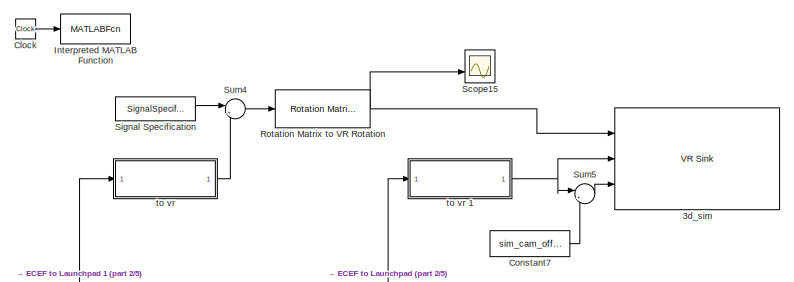
[diagram: root canvas - part 1/5, top right region]
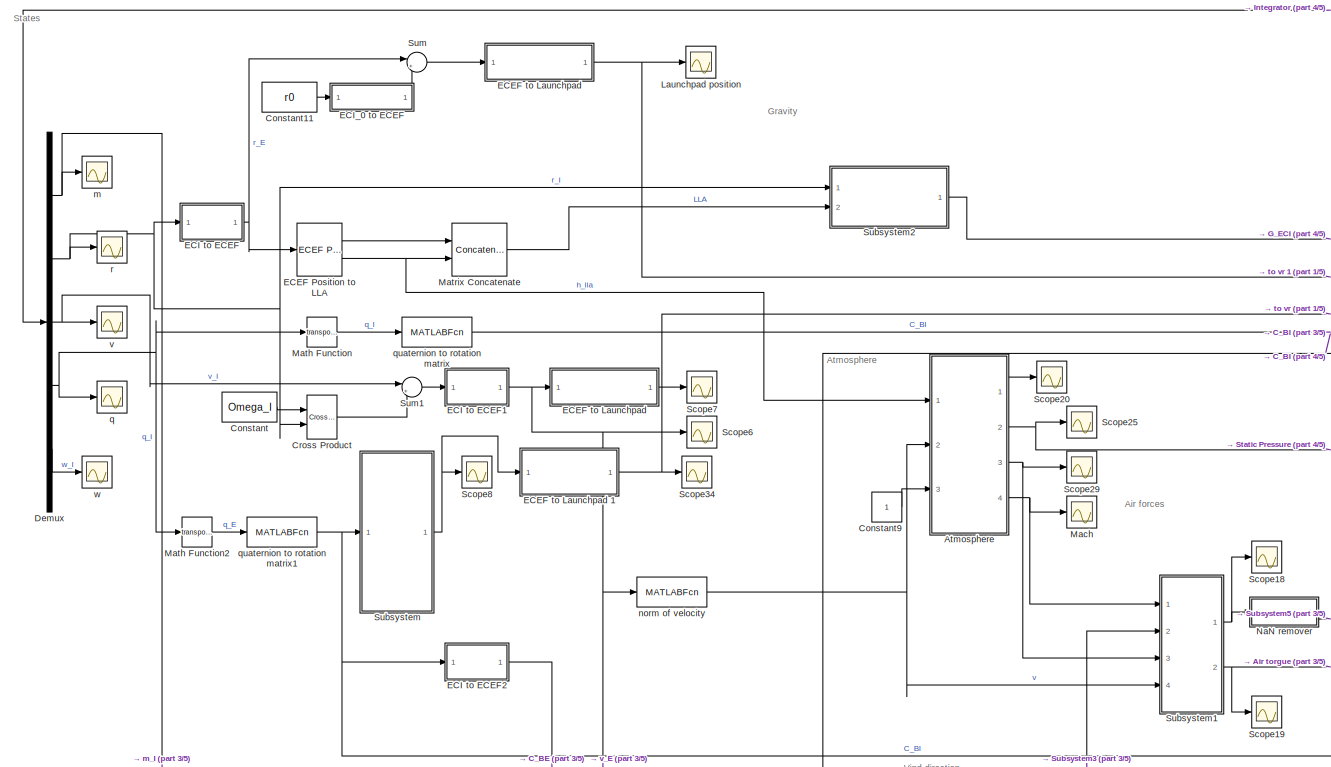
[diagram: root canvas - part 2/5, top left region]
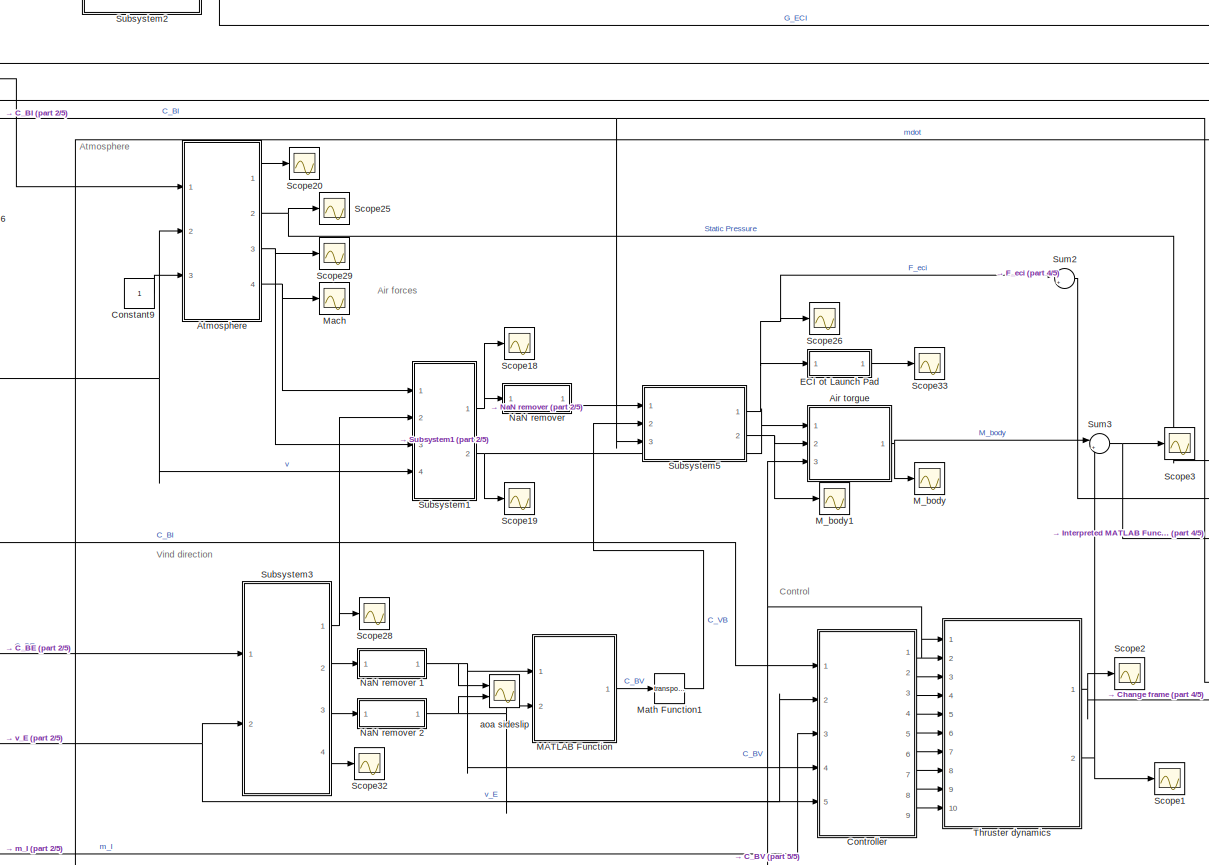
[diagram: root canvas - part 3/5, central region]
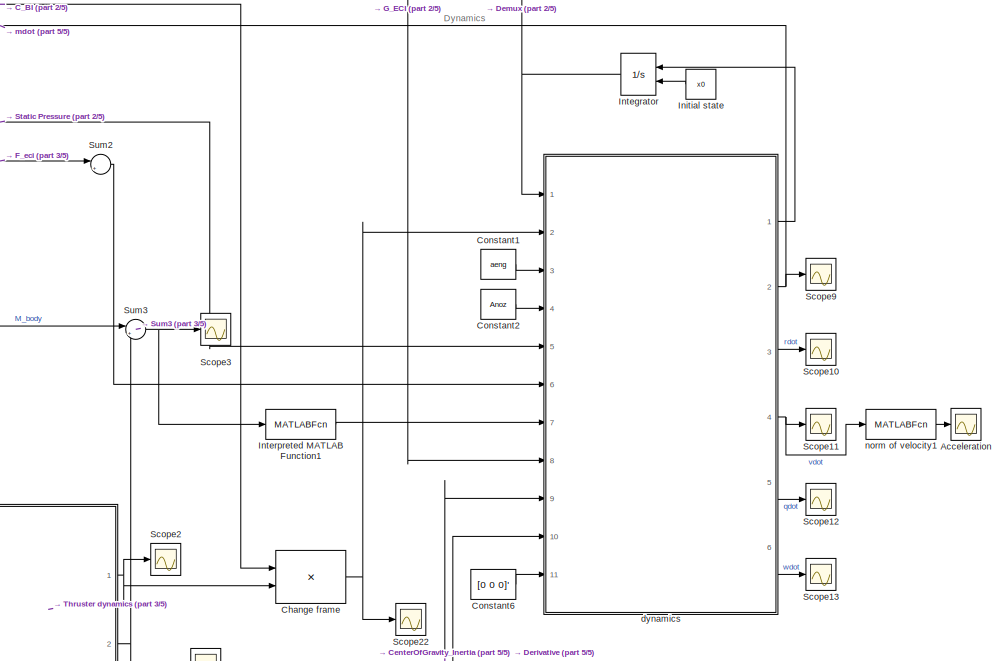
[diagram: root canvas - part 4/5, middle right region]
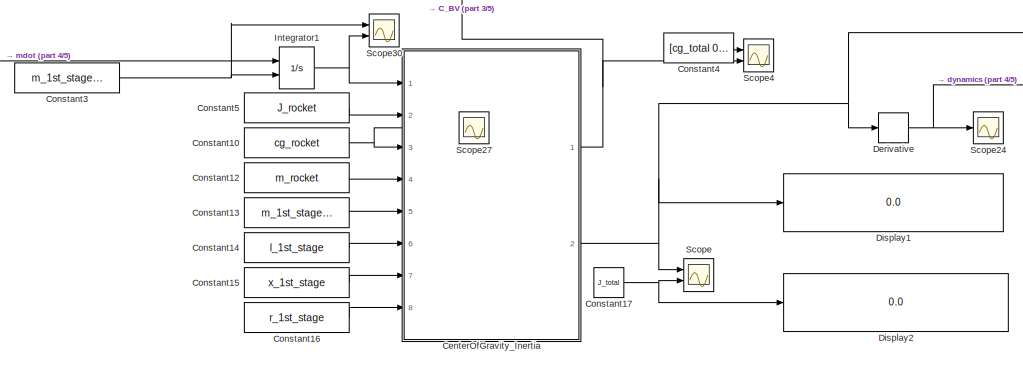
[diagram: root canvas - part 5/5, bottom center region]
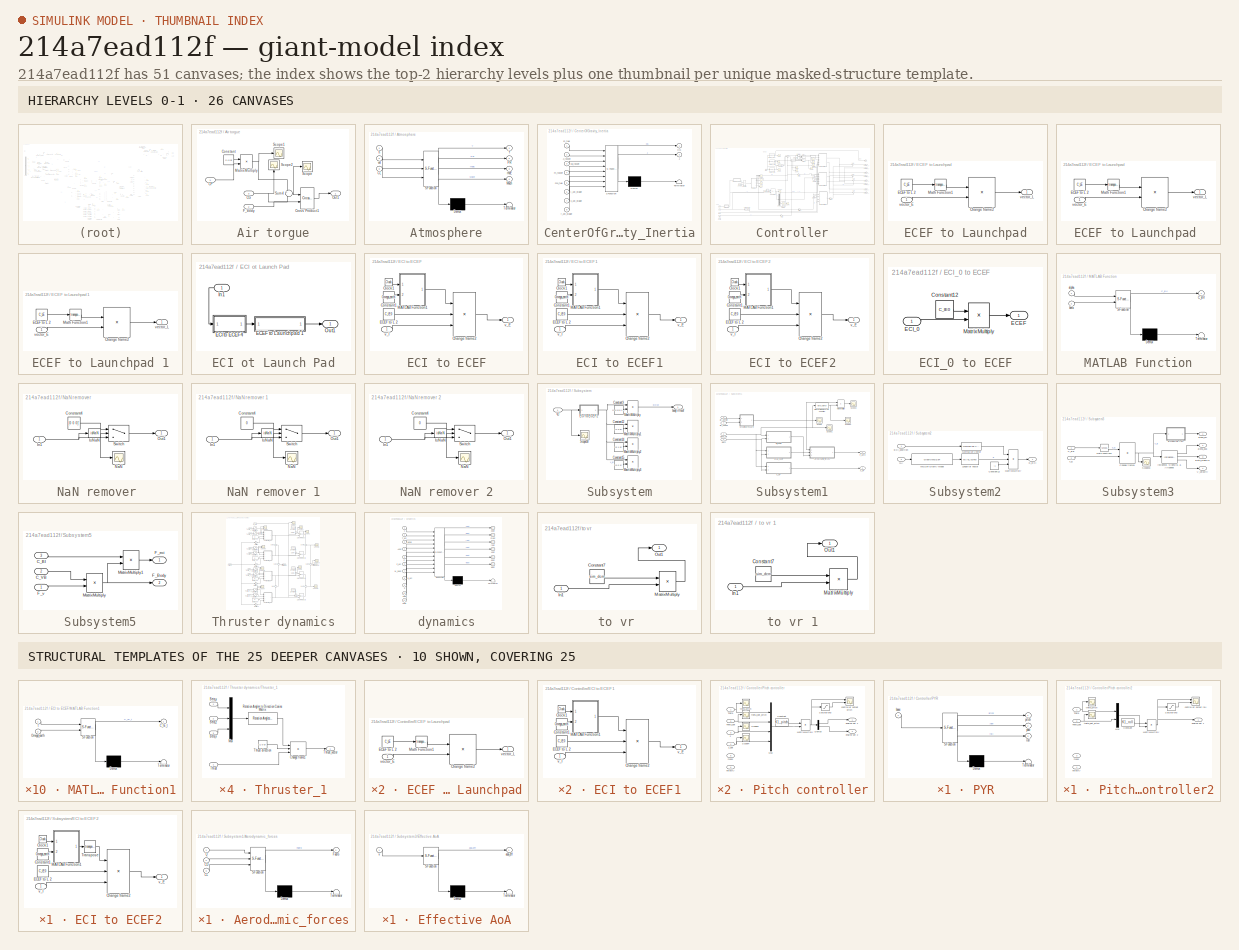
[diagram: thumbnail index - top-2 hierarchy levels (26 canvases) + 10 structural-template representatives of the remaining 25 canvases]
MODEL slx_214a7ead112f
KIND model
CONFIG AbsTol = auto
CONFIG EnableMultiTasking = off
CONFIG FixedStep = 0.001
CONFIG InitFcn = initScript
CONFIG MaxStep = auto
CONFIG MinStep = 0.01
CONFIG RelTol = 1e-3
CONFIG SampleTimeConstraint = Unconstrained
CONFIG Solver = VariableStepAuto
CONFIG SolverName = VariableStepAuto
CONFIG StartTime = 0
CONFIG StopTime = 100
BLOCK [Reference] 3d_sim   REF=vrlib/VR Sink
  InstantiateOnLoad = on
  Ports = [3]
  SourceBlock = vrlib/VR Sink
  SourceProductBaseCode = SL
  SourceProductName = Simulink
  SourceType = Virtual Reality Sink
BLOCK [Scope] Acceleration 
  Floating = off
  NumInputPorts = 1
  Ports = [1]
  ScopeSpecificationString = Simulink.scopes.TimeScopeBlockCfg('CurrentConfiguration', extmgr.ConfigurationSet(extmgr.Configuration('Core','General UI',true),extmgr.Configuration('Core','Source UI',true),extmgr.Configuration('Sources','WiredSimulink',true,'DataLoggingVariableName','ScopeData6'),extmgr.Configuration('Visuals','Time Domain',true,'SerializedDisplays',{struct('MinYLimReal','-70849789848345891918353302489421068903...<+1985ch>
BLOCK [SubSystem] Air torgue
  Ports = [3, 1]
  RequestExecContextInheritance = off
BLOCK [Inport] Air torgue/CG
  IconDisplay = Port number
  Port = 3
BLOCK [Inport] Air torgue/CP
  IconDisplay = Port number
BLOCK [Constant] Air torgue/Constant
  Value = [1 0 0]
BLOCK [Reference] Air torgue/Cross Product1  REF=vrlib/Utilities/Cross Product
  Ports = [2, 1]
  SourceBlock = vrlib/Utilities/Cross Product
  SourceProductBaseCode = SL
  SourceProductName = Simulink
  SourceType = Cross Product
BLOCK [Inport] Air torgue/F_body
  IconDisplay = Port number
  Port = 2
BLOCK [Product] Air torgue/MatrixMultiply
  InputSameDT = off
  Multiplication = Matrix(*)
  OutDataTypeStr = Inherit: Inherit via internal rule
  Ports = [2, 1]
  RndMeth = Floor
  SaturateOnIntegerOverflow = off
BLOCK [Outport] Air torgue/Out1
  IconDisplay = Port number
BLOCK [Scope] Air torgue/Scope
  Floating = off
  NumInputPorts = 1
  Ports = [1]
  ScopeSpecificationString = Simulink.scopes.TimeScopeBlockCfg('CurrentConfiguration', extmgr.ConfigurationSet(extmgr.Configuration('Core','General UI',true),extmgr.Configuration('Core','Source UI',true),extmgr.Configuration('Sources','WiredSimulink',true,'DataLoggingVariableName','ScopeData5'),extmgr.Configuration('Visuals','Time Domain',true,'SerializedDisplays',{struct('MinYLimReal','-2.68504','MaxYLimReal','24.16535','YLa...<+1417ch>
BLOCK [Scope] Air torgue/Scope1
  Floating = off
  NumInputPorts = 1
  Ports = [1]
  ScopeSpecificationString = Simulink.scopes.TimeScopeBlockCfg('CurrentConfiguration', extmgr.ConfigurationSet(extmgr.Configuration('Core','General UI',true),extmgr.Configuration('Core','Source UI',true),extmgr.Configuration('Sources','WiredSimulink',true,'DataLoggingVariableName','ScopeData6'),extmgr.Configuration('Visuals','Time Domain',true,'SerializedDisplays',{struct('MinYLimReal','-3.75116','MaxYLimReal','33.76045','YLa...<+1447ch>
BLOCK [Scope] Air torgue/Scope2
  Floating = off
  NumInputPorts = 1
  Ports = [1]
  ScopeSpecificationString = Simulink.scopes.TimeScopeBlockCfg('CurrentConfiguration', extmgr.ConfigurationSet(extmgr.Configuration('Core','General UI',true),extmgr.Configuration('Core','Source UI',true),extmgr.Configuration('Sources','WiredSimulink',true,'DataLoggingVariableName','ScopeData7'),extmgr.Configuration('Visuals','Time Domain',true,'SerializedDisplays',{struct('MinYLimReal','-1.97539','MaxYLimReal','17.77853','YLa...<+1381ch>
BLOCK [Sum] Air torgue/Sum4
  IconShape = round
  InputSameDT = off
  Inputs = +-
  OutDataTypeStr = Inherit: Inherit via internal rule
  Ports = [2, 1]
  SaturateOnIntegerOverflow = off
BLOCK [SubSystem] Atmosphere
  ErrorFcn = Stateflow.Translate.translate
  PermitHierarchicalResolution = ExplicitOnly
  Ports = [3, 4]
  RequestExecContextInheritance = off
  SFBlockType = MATLAB Function
  TreatAsAtomicUnit = on
BLOCK [Demux] Atmosphere/ Demux 
  Outputs = 1
  Ports = [1, 1]
BLOCK [S-Function] Atmosphere/ SFunction 
  EnableBusSupport = on
  FunctionName = sf_sfun
  PortCounts = [3 5]
  Ports = [3, 5]
  SFcnIsStateOwnerBlock = off
  SFunctionDeploymentMode = off
  Tag = Stateflow S-Function 7
BLOCK [Terminator] Atmosphere/ Terminator 
BLOCK [Inport] Atmosphere/CL
  IconDisplay = Port number
  Port = 3
BLOCK [Outport] Atmosphere/Mach
  IconDisplay = Port number
  Port = 4
BLOCK [Outport] Atmosphere/PR
  IconDisplay = Port number
  Port = 2
BLOCK [Outport] Atmosphere/Y
  IconDisplay = Port number
BLOCK [Inport] Atmosphere/h
  IconDisplay = Port number
BLOCK [Outport] Atmosphere/rhoE
  IconDisplay = Port number
  Port = 3
BLOCK [Inport] Atmosphere/vel
  IconDisplay = Port number
  Port = 2
BLOCK [SubSystem] CenterOfGravity_Inertia
  ErrorFcn = Stateflow.Translate.translate
  PermitHierarchicalResolution = ExplicitOnly
  Ports = [8, 2]
  RequestExecContextInheritance = off
  SFBlockType = MATLAB Function
  TreatAsAtomicUnit = on
BLOCK [Demux] CenterOfGravity_Inertia/ Demux 
  Outputs = 1
  Ports = [1, 1]
BLOCK [S-Function] CenterOfGravity_Inertia/ SFunction 
  EnableBusSupport = on
  FunctionName = sf_sfun
  PortCounts = [8 3]
  Ports = [8, 3]
  SFcnIsStateOwnerBlock = off
  SFunctionDeploymentMode = off
  Tag = Stateflow S-Function 5
BLOCK [Terminator] CenterOfGravity_Inertia/ Terminator 
BLOCK [Outport] CenterOfGravity_Inertia/CG
  IconDisplay = Port number
BLOCK [Outport] CenterOfGravity_Inertia/J
  IconDisplay = Port number
  Port = 2
BLOCK [Inport] CenterOfGravity_Inertia/J_rocket
  IconDisplay = Port number
  Port = 2
BLOCK [Inport] CenterOfGravity_Inertia/cg_rocket
  IconDisplay = Port number
  Port = 3
BLOCK [Inport] CenterOfGravity_Inertia/l_1st_stage
  IconDisplay = Port number
  Port = 6
BLOCK [Inport] CenterOfGravity_Inertia/m0_fuel
  IconDisplay = Port number
  Port = 5
BLOCK [Inport] CenterOfGravity_Inertia/m_fuel
  IconDisplay = Port number
BLOCK [Inport] CenterOfGravity_Inertia/m_rocket
  IconDisplay = Port number
  Port = 4
BLOCK [Inport] CenterOfGravity_Inertia/r_1st_stage
  IconDisplay = Port number
  Port = 8
BLOCK [Inport] CenterOfGravity_Inertia/x_1st_stage
  IconDisplay = Port number
  Port = 7
BLOCK [Product] Change frame
  InputSameDT = off
  Multiplication = Matrix(*)
  OutDataTypeStr = Inherit: Inherit via internal rule
  Ports = [2, 1]
  RndMeth = Floor
  SaturateOnIntegerOverflow = off
BLOCK [Clock] Clock
BLOCK [Constant] Constant
  Value = Omega_I
BLOCK [Constant] Constant1
  Value = aeng
BLOCK [Constant] Constant10
  Value = cg_rocket
BLOCK [Constant] Constant11
  Value = r0
BLOCK [Constant] Constant12
  Value = m_rocket
BLOCK [Constant] Constant13
  Value = m_1st_stage_fuel
BLOCK [Constant] Constant14
  Value = l_1st_stage
BLOCK [Constant] Constant15
  Value = x_1st_stage
BLOCK [Constant] Constant16
  Value = r_1st_stage
BLOCK [Constant] Constant17
  Value = J_total
BLOCK [Constant] Constant2
  Value = Anoz
BLOCK [Constant] Constant3
  Value = m_1st_stage_fuel
BLOCK [Constant] Constant4
  Value = [cg_total 0 0]'
BLOCK [Constant] Constant5
  Value = J_rocket
BLOCK [Constant] Constant6
  Value = [0 0 0]'
BLOCK [Constant] Constant7
  Value = sim_cam_offset
BLOCK [Constant] Constant9
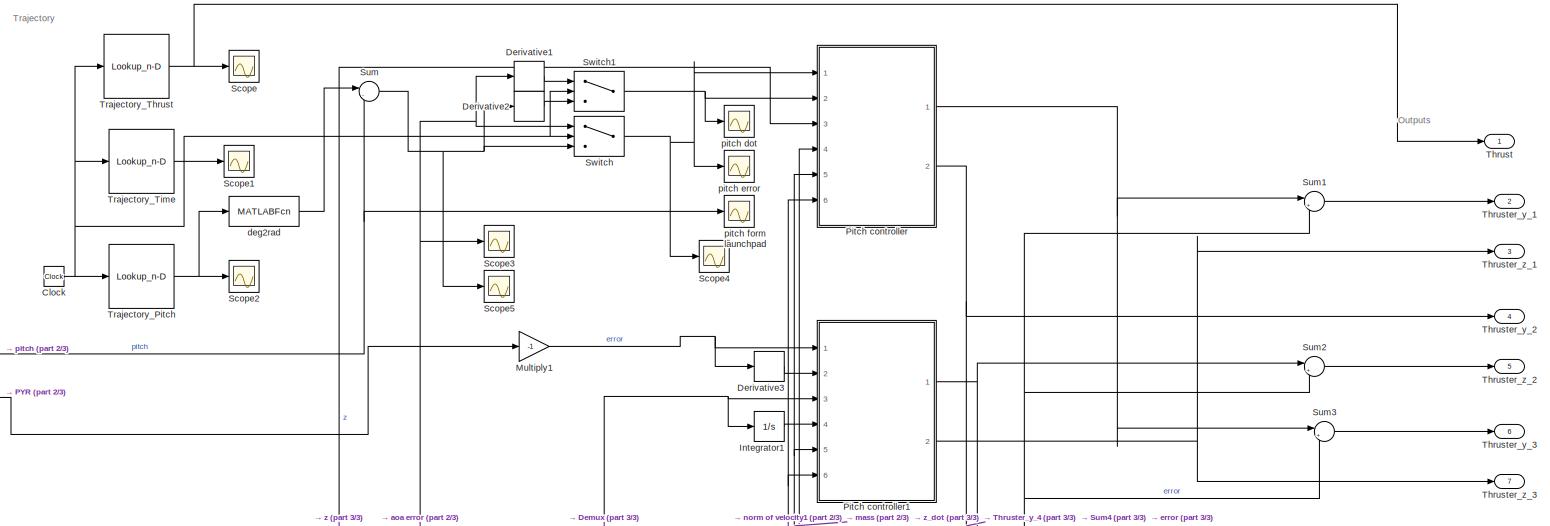
[diagram: Controller - part 1/3, top center region]
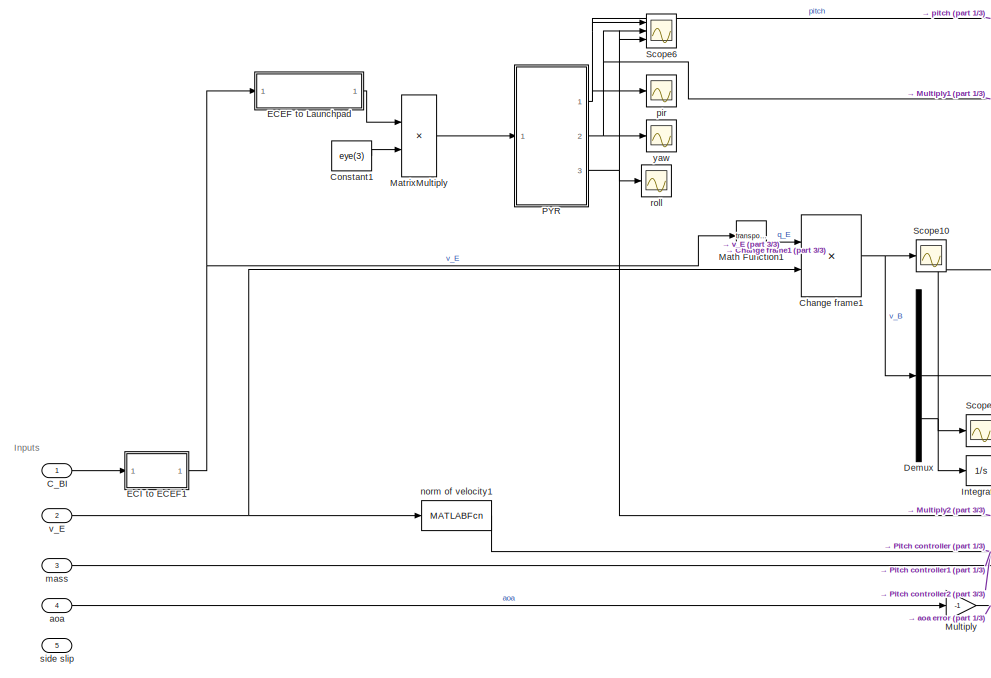
[diagram: Controller - part 2/3, bottom left region]
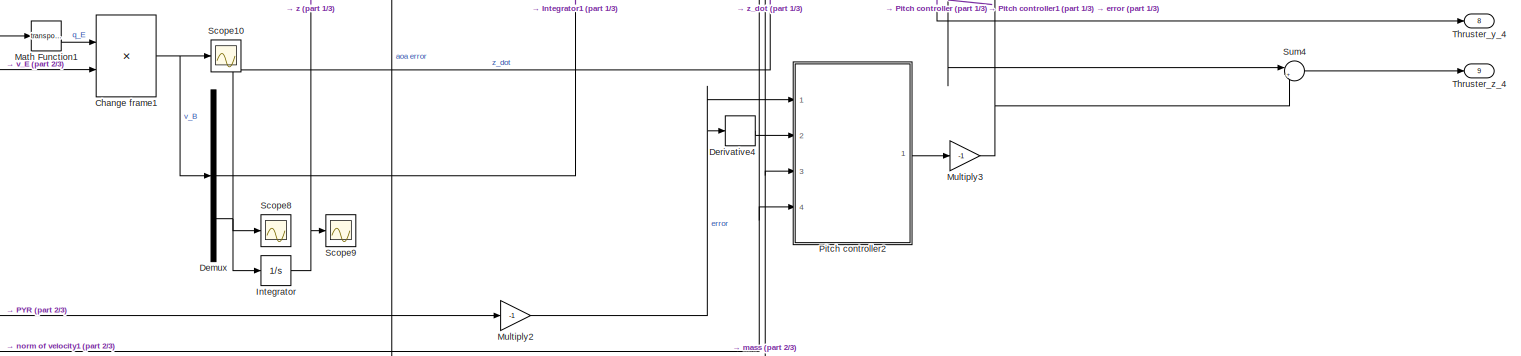
[diagram: Controller - part 3/3, bottom center region]
BLOCK [SubSystem] Controller
  Ports = [5, 9]
  RequestExecContextInheritance = off
BLOCK [Inport] Controller/C_BI
  IconDisplay = Port number
BLOCK [Product] Controller/Change frame1
  InputSameDT = off
  Multiplication = Matrix(*)
  OutDataTypeStr = Inherit: Inherit via internal rule
  Ports = [2, 1]
  RndMeth = Floor
  SaturateOnIntegerOverflow = off
BLOCK [Clock] Controller/Clock
BLOCK [Constant] Controller/Constant1
  Value = eye(3)
BLOCK [Demux] Controller/Demux
  DisplayOption = bar
  Outputs = 3
  Ports = [1, 3]
BLOCK [Derivative] Controller/Derivative1
BLOCK [Derivative] Controller/Derivative2
BLOCK [Derivative] Controller/Derivative3
BLOCK [Derivative] Controller/Derivative4
BLOCK [SubSystem] Controller/ECEF to Launchpad
  Ports = [1, 1]
  RequestExecContextInheritance = off
BLOCK [Product] Controller/ECEF to Launchpad/Change frame2
  InputSameDT = off
  Multiplication = Matrix(*)
  OutDataTypeStr = Inherit: Inherit via internal rule
  Ports = [2, 1]
  RndMeth = Floor
  SaturateOnIntegerOverflow = off
BLOCK [Constant] Controller/ECEF to Launchpad/ECEF to L 2
  Value = C_LE
BLOCK [Math] Controller/ECEF to Launchpad/Math Function1
  Operator = transpose
  Ports = [1, 1]
  SignedPower = off
BLOCK [Inport] Controller/ECEF to Launchpad/vector_E 
  IconDisplay = Port number
BLOCK [Outport] Controller/ECEF to Launchpad/vector_L
  IconDisplay = Port number
BLOCK [SubSystem] Controller/ECI to ECEF1
  Ports = [1, 1]
  RequestExecContextInheritance = off
BLOCK [Product] Controller/ECI to ECEF1/Change frame2
  InputSameDT = off
  Inputs = 3
  Multiplication = Matrix(*)
  OutDataTypeStr = Inherit: Inherit via internal rule
  Ports = [3, 1]
  RndMeth = Floor
  SaturateOnIntegerOverflow = off
BLOCK [Clock] Controller/ECI to ECEF1/Clock1
BLOCK [Constant] Controller/ECI to ECEF1/Constant1
  Value = Omega_earth
BLOCK [Constant] Controller/ECI to ECEF1/ECEF to L 2
  Value = C_IE0
BLOCK [SubSystem] Controller/ECI to ECEF1/MATLAB Function1
  ErrorFcn = Stateflow.Translate.translate
  PermitHierarchicalResolution = ExplicitOnly
  Ports = [2, 1]
  RequestExecContextInheritance = off
  SFBlockType = MATLAB Function
  TreatAsAtomicUnit = on
BLOCK [Demux] Controller/ECI to ECEF1/MATLAB Function1/ Demux 
  Outputs = 1
  Ports = [1, 1]
BLOCK [S-Function] Controller/ECI to ECEF1/MATLAB Function1/ SFunction 
  EnableBusSupport = on
  FunctionName = sf_sfun
  PortCounts = [2 2]
  Ports = [2, 2]
  SFcnIsStateOwnerBlock = off
  SFunctionDeploymentMode = off
  Tag = Stateflow S-Function 16
BLOCK [Terminator] Controller/ECI to ECEF1/MATLAB Function1/ Terminator 
BLOCK [Outport] Controller/ECI to ECEF1/MATLAB Function1/C_IE_t
  IconDisplay = Port number
BLOCK [Inport] Controller/ECI to ECEF1/MATLAB Function1/Omega_earth
  IconDisplay = Port number
  Port = 2
BLOCK [Inport] Controller/ECI to ECEF1/MATLAB Function1/t
  IconDisplay = Port number
BLOCK [Outport] Controller/ECI to ECEF1/v_E
  IconDisplay = Port number
BLOCK [Inport] Controller/ECI to ECEF1/v_I 
  IconDisplay = Port number
BLOCK [Integrator] Controller/Integrator
  Ports = [1, 1]
BLOCK [Integrator] Controller/Integrator1
  Ports = [1, 1]
BLOCK [Math] Controller/Math Function1
  Operator = transpose
  Ports = [1, 1]
  SignedPower = off
BLOCK [Product] Controller/MatrixMultiply
  InputSameDT = off
  Multiplication = Matrix(*)
  OutDataTypeStr = Inherit: Inherit via internal rule
  Ports = [2, 1]
  RndMeth = Floor
  SaturateOnIntegerOverflow = off
BLOCK [Gain] Controller/Multiply
  Gain = -1
  OutDataTypeStr = Inherit: Inherit via internal rule
  ParamDataTypeStr = Inherit: Inherit via internal rule
  SaturateOnIntegerOverflow = off
BLOCK [Gain] Controller/Multiply1
  Commented = through
  Gain = -1
  OutDataTypeStr = Inherit: Inherit via internal rule
  ParamDataTypeStr = Inherit: Inherit via internal rule
  SaturateOnIntegerOverflow = off
BLOCK [Gain] Controller/Multiply2
  Gain = -1
  OutDataTypeStr = Inherit: Inherit via internal rule
  ParamDataTypeStr = Inherit: Inherit via internal rule
  SaturateOnIntegerOverflow = off
BLOCK [Gain] Controller/Multiply3
  Commented = through
  Gain = -1
  OutDataTypeStr = Inherit: Inherit via internal rule
  ParamDataTypeStr = Inherit: Inherit via internal rule
  SaturateOnIntegerOverflow = off
BLOCK [SubSystem] Controller/PYR
  ErrorFcn = Stateflow.Translate.translate
  PermitHierarchicalResolution = ExplicitOnly
  Ports = [1, 3]
  RequestExecContextInheritance = off
  SFBlockType = MATLAB Function
  TreatAsAtomicUnit = on
BLOCK [Demux] Controller/PYR/ Demux 
  Outputs = 1
  Ports = [1, 1]
BLOCK [S-Function] Controller/PYR/ SFunction 
  EnableBusSupport = on
  FunctionName = sf_sfun
  PortCounts = [1 4]
  Ports = [1, 4]
  SFcnIsStateOwnerBlock = off
  SFunctionDeploymentMode = off
  Tag = Stateflow S-Function 17
BLOCK [Terminator] Controller/PYR/ Terminator 
BLOCK [Inport] Controller/PYR/base
  IconDisplay = Port number
BLOCK [Outport] Controller/PYR/pitch
  IconDisplay = Port number
BLOCK [Outport] Controller/PYR/roll
  IconDisplay = Port number
  Port = 3
BLOCK [Outport] Controller/PYR/yaw
  IconDisplay = Port number
  Port = 2
BLOCK [SubSystem] Controller/Pitch controller
  Ports = [6, 2]
  RequestExecContextInheritance = off
BLOCK [Constant] Controller/Pitch controller/Constant
  Value = K1_pitch
  VectorParams1D = off
BLOCK [Demux] Controller/Pitch controller/Demux
  DisplayOption = bar
  Outputs = 2
  Ports = [1, 2]
BLOCK [Product] Controller/Pitch controller/MatrixMultiply
  InputSameDT = off
  Multiplication = Matrix(*)
  OutDataTypeStr = Inherit: Inherit via internal rule
  Ports = [2, 1]
  RndMeth = Floor
  SaturateOnIntegerOverflow = off
BLOCK [Mux] Controller/Pitch controller/Mux
  DisplayOption = bar
  Ports = [4, 1]
BLOCK [Saturate] Controller/Pitch controller/Saturation3
  InputPortMap = u0
  LinearizeAsGain = off
  LowerLimit = deg2rad(-6)
  Ports = [1, 1]
  UpperLimit = deg2rad(6)
  ZeroCross = off
BLOCK [Scope] Controller/Pitch controller/Scope3
  Floating = off
  NumInputPorts = 1
  Ports = [1]
  ScopeSpecificationString = Simulink.scopes.TimeScopeBlockCfg('CurrentConfiguration', extmgr.ConfigurationSet(extmgr.Configuration('Core','General UI',true),extmgr.Configuration('Core','Source UI',true),extmgr.Configuration('Sources','WiredSimulink',true,'DataLoggingVariableName','ScopeData8'),extmgr.Configuration('Visuals','Time Domain',true,'PlotType','Line','SerializedDisplays',{struct('MinYLimReal','-5987.50088','MaxYLim...<+1566ch>
BLOCK [Scope] Controller/Pitch controller/Scope4
  Floating = off
  NumInputPorts = 1
  Ports = [1]
  ScopeSpecificationString = Simulink.scopes.TimeScopeBlockCfg('CurrentConfiguration', extmgr.ConfigurationSet(extmgr.Configuration('Core','General UI',true),extmgr.Configuration('Core','Source UI',true),extmgr.Configuration('Sources','WiredSimulink',true,'DataLoggingVariableName','ScopeData9'),extmgr.Configuration('Visuals','Time Domain',true,'PlotType','Line','SerializedDisplays',{struct('MinYLimReal','-19.63858','MaxYLimRe...<+1524ch>
BLOCK [Inport] Controller/Pitch controller/Theta
  IconDisplay = Port number
BLOCK [Inport] Controller/Pitch controller/Theta_dot
  IconDisplay = Port number
  Port = 2
BLOCK [Scope] Controller/Pitch controller/controller output pitch
  Floating = off
  NumInputPorts = 2
  Ports = [2]
  ScopeSpecificationString = Simulink.scopes.TimeScopeBlockCfg('CurrentConfiguration', extmgr.ConfigurationSet(extmgr.Configuration('Core','General UI',true),extmgr.Configuration('Core','Source UI',true),extmgr.Configuration('Sources','WiredSimulink',true,'DataLoggingVariableName','ScopeData5'),extmgr.Configuration('Visuals','Time Domain',true,'SerializedDisplays',{struct('MinYLimReal','-0.09063','MaxYLimReal','0.07753','YLab...<+1583ch>
BLOCK [Outport] Controller/Pitch controller/engine set 1
  IconDisplay = Port number
BLOCK [Outport] Controller/Pitch controller/engine set 2
  IconDisplay = Port number
  Port = 2
BLOCK [Inport] Controller/Pitch controller/mass
  IconDisplay = Port number
  Port = 5
BLOCK [Scope] Controller/Pitch controller/theta_dot_pitch
  Floating = off
  NumInputPorts = 1
  Ports = [1]
  ScopeSpecificationString = Simulink.scopes.TimeScopeBlockCfg('CurrentConfiguration', extmgr.ConfigurationSet(extmgr.Configuration('Core','General UI',true),extmgr.Configuration('Core','Source UI',true),extmgr.Configuration('Sources','WiredSimulink',true,'DataLoggingVariableName','ScopeData7'),extmgr.Configuration('Visuals','Time Domain',true,'PlotType','Line','SerializedDisplays',{struct('MinYLimReal','-0.03004','MaxYLimRea...<+1555ch>
BLOCK [Scope] Controller/Pitch controller/theta_pitch
  Floating = off
  NumInputPorts = 1
  Ports = [1]
  ScopeSpecificationString = Simulink.scopes.TimeScopeBlockCfg('CurrentConfiguration', extmgr.ConfigurationSet(extmgr.Configuration('Core','General UI',true),extmgr.Configuration('Core','Source UI',true),extmgr.Configuration('Sources','WiredSimulink',true,'DataLoggingVariableName','ScopeData6'),extmgr.Configuration('Visuals','Time Domain',true,'PlotType','Line','SerializedDisplays',{struct('MinYLimReal','-0.03355','MaxYLimRea...<+1546ch>
BLOCK [Inport] Controller/Pitch controller/velocity
  IconDisplay = Port number
  Port = 6
BLOCK [Inport] Controller/Pitch controller/z
  IconDisplay = Port number
  Port = 3
BLOCK [Inport] Controller/Pitch controller/z_dot
  IconDisplay = Port number
  Port = 4
BLOCK [SubSystem] Controller/Pitch controller1
  Ports = [6, 2]
  RequestExecContextInheritance = off
BLOCK [Constant] Controller/Pitch controller1/Constant
  Value = K1_yaw
BLOCK [Demux] Controller/Pitch controller1/Demux
  DisplayOption = bar
  Outputs = 2
  Ports = [1, 2]
BLOCK [Product] Controller/Pitch controller1/MatrixMultiply
  InputSameDT = off
  Multiplication = Matrix(*)
  OutDataTypeStr = Inherit: Inherit via internal rule
  Ports = [2, 1]
  RndMeth = Floor
  SaturateOnIntegerOverflow = off
BLOCK [Mux] Controller/Pitch controller1/Mux
  DisplayOption = bar
  Ports = [4, 1]
BLOCK [Saturate] Controller/Pitch controller1/Saturation3
  InputPortMap = u0
  LinearizeAsGain = off
  LowerLimit = deg2rad(-6)
  Ports = [1, 1]
  UpperLimit = deg2rad(6)
  ZeroCross = off
BLOCK [Scope] Controller/Pitch controller1/Scope3
  Floating = off
  NumInputPorts = 1
  Ports = [1]
  ScopeSpecificationString = Simulink.scopes.TimeScopeBlockCfg('CurrentConfiguration', extmgr.ConfigurationSet(extmgr.Configuration('Core','General UI',true),extmgr.Configuration('Core','Source UI',true),extmgr.Configuration('Sources','WiredSimulink',true,'DataLoggingVariableName','ScopeData8'),extmgr.Configuration('Visuals','Time Domain',true,'PlotType','Line','SerializedDisplays',{struct('MinYLimReal','-5987.50088','MaxYLim...<+1566ch>
BLOCK [Scope] Controller/Pitch controller1/Scope4
  Floating = off
  NumInputPorts = 1
  Ports = [1]
  ScopeSpecificationString = Simulink.scopes.TimeScopeBlockCfg('CurrentConfiguration', extmgr.ConfigurationSet(extmgr.Configuration('Core','General UI',true),extmgr.Configuration('Core','Source UI',true),extmgr.Configuration('Sources','WiredSimulink',true,'DataLoggingVariableName','ScopeData9'),extmgr.Configuration('Visuals','Time Domain',true,'PlotType','Line','SerializedDisplays',{struct('MinYLimReal','-19.63858','MaxYLimRe...<+1524ch>
BLOCK [Inport] Controller/Pitch controller1/Theta
  IconDisplay = Port number
BLOCK [Inport] Controller/Pitch controller1/Theta_dot
  IconDisplay = Port number
  Port = 2
BLOCK [Scope] Controller/Pitch controller1/controller output yaw
  Floating = off
  NumInputPorts = 2
  Ports = [2]
  ScopeSpecificationString = Simulink.scopes.TimeScopeBlockCfg('CurrentConfiguration', extmgr.ConfigurationSet(extmgr.Configuration('Core','General UI',true),extmgr.Configuration('Core','Source UI',true),extmgr.Configuration('Sources','WiredSimulink',true,'DataLoggingVariableName','ScopeData5'),extmgr.Configuration('Visuals','Time Domain',true,'SerializedDisplays',{struct('MinYLimReal','-0.27531','MaxYLimReal','0.12501','YLab...<+1583ch>
BLOCK [Outport] Controller/Pitch controller1/engine set 1
  IconDisplay = Port number
BLOCK [Outport] Controller/Pitch controller1/engine set 2
  IconDisplay = Port number
  Port = 2
BLOCK [Inport] Controller/Pitch controller1/mass
  IconDisplay = Port number
  Port = 5
BLOCK [Scope] Controller/Pitch controller1/theta_dot_pitch
  Floating = off
  NumInputPorts = 1
  Ports = [1]
  ScopeSpecificationString = Simulink.scopes.TimeScopeBlockCfg('CurrentConfiguration', extmgr.ConfigurationSet(extmgr.Configuration('Core','General UI',true),extmgr.Configuration('Core','Source UI',true),extmgr.Configuration('Sources','WiredSimulink',true,'DataLoggingVariableName','ScopeData7'),extmgr.Configuration('Visuals','Time Domain',true,'PlotType','Line','SerializedDisplays',{struct('MinYLimReal','-0.03004','MaxYLimRea...<+1581ch>
BLOCK [Scope] Controller/Pitch controller1/theta_pitch
  Floating = off
  NumInputPorts = 1
  Ports = [1]
  ScopeSpecificationString = Simulink.scopes.TimeScopeBlockCfg('CurrentConfiguration', extmgr.ConfigurationSet(extmgr.Configuration('Core','General UI',true),extmgr.Configuration('Core','Source UI',true),extmgr.Configuration('Sources','WiredSimulink',true,'DataLoggingVariableName','ScopeData6'),extmgr.Configuration('Visuals','Time Domain',true,'PlotType','Line','SerializedDisplays',{struct('MinYLimReal','-1.96289','MaxYLimRea...<+1575ch>
BLOCK [Inport] Controller/Pitch controller1/velocity
  IconDisplay = Port number
  Port = 6
BLOCK [Inport] Controller/Pitch controller1/z
  IconDisplay = Port number
  Port = 3
BLOCK [Inport] Controller/Pitch controller1/z_dot
  IconDisplay = Port number
  Port = 4
BLOCK [SubSystem] Controller/Pitch controller2
  Ports = [4, 1]
  RequestExecContextInheritance = off
BLOCK [Constant] Controller/Pitch controller2/Constant
  Value = K1_roll
  VectorParams1D = off
BLOCK [Product] Controller/Pitch controller2/MatrixMultiply
  InputSameDT = off
  Multiplication = Matrix(*)
  OutDataTypeStr = Inherit: Inherit via internal rule
  Ports = [2, 1]
  RndMeth = Floor
  SaturateOnIntegerOverflow = off
BLOCK [Mux] Controller/Pitch controller2/Mux
  DisplayOption = bar
  Inputs = 2
  Ports = [2, 1]
BLOCK [Saturate] Controller/Pitch controller2/Saturation3
  InputPortMap = u0
  LinearizeAsGain = off
  LowerLimit = deg2rad(-6)
  Ports = [1, 1]
  UpperLimit = deg2rad(6)
  ZeroCross = off
BLOCK [Inport] Controller/Pitch controller2/Theta
  IconDisplay = Port number
BLOCK [Inport] Controller/Pitch controller2/Theta_dot
  IconDisplay = Port number
  Port = 2
BLOCK [Scope] Controller/Pitch controller2/controller output roll
  Floating = off
  NumInputPorts = 2
  Ports = [2]
  ScopeSpecificationString = Simulink.scopes.TimeScopeBlockCfg('CurrentConfiguration', extmgr.ConfigurationSet(extmgr.Configuration('Core','General UI',true),extmgr.Configuration('Core','Source UI',true),extmgr.Configuration('Sources','WiredSimulink',true,'DataLoggingVariableName','ScopeData5'),extmgr.Configuration('Visuals','Time Domain',true,'SerializedDisplays',{struct('MinYLimReal','-0.27531','MaxYLimReal','0.12501','YLab...<+1551ch>
BLOCK [Outport] Controller/Pitch controller2/engine set 1
  IconDisplay = Port number
BLOCK [Inport] Controller/Pitch controller2/mass
  IconDisplay = Port number
  Port = 3
BLOCK [Scope] Controller/Pitch controller2/theta_dot_pitch
  Floating = off
  NumInputPorts = 1
  Ports = [1]
  ScopeSpecificationString = Simulink.scopes.TimeScopeBlockCfg('CurrentConfiguration', extmgr.ConfigurationSet(extmgr.Configuration('Core','General UI',true),extmgr.Configuration('Core','Source UI',true),extmgr.Configuration('Sources','WiredSimulink',true,'DataLoggingVariableName','ScopeData7'),extmgr.Configuration('Visuals','Time Domain',true,'PlotType','Line','SerializedDisplays',{struct('MinYLimReal','-0.03004','MaxYLimRea...<+1581ch>
BLOCK [Scope] Controller/Pitch controller2/theta_pitch
  Floating = off
  NumInputPorts = 1
  Ports = [1]
  ScopeSpecificationString = Simulink.scopes.TimeScopeBlockCfg('CurrentConfiguration', extmgr.ConfigurationSet(extmgr.Configuration('Core','General UI',true),extmgr.Configuration('Core','Source UI',true),extmgr.Configuration('Sources','WiredSimulink',true,'DataLoggingVariableName','ScopeData6'),extmgr.Configuration('Visuals','Time Domain',true,'PlotType','Line','SerializedDisplays',{struct('MinYLimReal','-3.90603','MaxYLimRea...<+1550ch>
BLOCK [Inport] Controller/Pitch controller2/velocity
  IconDisplay = Port number
  Port = 4
BLOCK [Scope] Controller/Scope
  Floating = off
  NumInputPorts = 1
  Ports = [1]
  ScopeSpecificationString = Simulink.scopes.TimeScopeBlockCfg('CurrentConfiguration', extmgr.ConfigurationSet(extmgr.Configuration('Core','General UI',true),extmgr.Configuration('Core','Source UI',true),extmgr.Configuration('Sources','WiredSimulink',true,'DataLoggingVariableName','ScopeData1'),extmgr.Configuration('Visuals','Time Domain',true,'SerializedDisplays',{struct('MinYLimReal','-350711.85251','MaxYLimReal','3156406.6...<+1448ch>
BLOCK [Scope] Controller/Scope1
  Floating = off
  NumInputPorts = 1
  Ports = [1]
  ScopeSpecificationString = Simulink.scopes.TimeScopeBlockCfg('CurrentConfiguration', extmgr.ConfigurationSet(extmgr.Configuration('Core','General UI',true),extmgr.Configuration('Core','Source UI',true),extmgr.Configuration('Sources','WiredSimulink',true,'DataLoggingVariableName','ScopeData2'),extmgr.Configuration('Visuals','Time Domain',true,'SerializedDisplays',{struct('MinYLimReal','-12.5','MaxYLimReal','112.5','YLabelRea...<+1379ch>
BLOCK [Scope] Controller/Scope10
  Floating = off
  NumInputPorts = 1
  Ports = [1]
  ScopeSpecificationString = Simulink.scopes.TimeScopeBlockCfg('CurrentConfiguration', extmgr.ConfigurationSet(extmgr.Configuration('Core','General UI',true),extmgr.Configuration('Core','Source UI',true),extmgr.Configuration('Sources','WiredSimulink',true,'DataLoggingVariableName','ScopeData3'),extmgr.Configuration('Visuals','Time Domain',true,'SerializedDisplays',{struct('MinYLimReal','-237.14811','MaxYLimReal','2117.30379',...<+1440ch>
BLOCK [Scope] Controller/Scope2
  Floating = off
  NumInputPorts = 1
  Ports = [1]
  ScopeSpecificationString = Simulink.scopes.TimeScopeBlockCfg('CurrentConfiguration', extmgr.ConfigurationSet(extmgr.Configuration('Core','General UI',true),extmgr.Configuration('Core','Source UI',true),extmgr.Configuration('Sources','WiredSimulink',true,'DataLoggingVariableName','ScopeData3'),extmgr.Configuration('Visuals','Time Domain',true,'SerializedDisplays',{struct('MinYLimReal','18.32344','MaxYLimReal','97.96406','YLa...<+1711ch>
BLOCK [Scope] Controller/Scope3
  Floating = off
  NumInputPorts = 1
  Ports = [1]
  ScopeSpecificationString = Simulink.scopes.TimeScopeBlockCfg('CurrentConfiguration', extmgr.ConfigurationSet(extmgr.Configuration('Core','General UI',true),extmgr.Configuration('Core','Source UI',true),extmgr.Configuration('Sources','WiredSimulink',true,'DataLoggingVariableName','ScopeData15'),extmgr.Configuration('Visuals','Time Domain',true,'SerializedDisplays',{struct('MinYLimReal','-3.92699','MaxYLimReal','3.92699','YLa...<+1418ch>
BLOCK [Scope] Controller/Scope4
  Floating = off
  NumInputPorts = 1
  Ports = [1]
  ScopeSpecificationString = Simulink.scopes.TimeScopeBlockCfg('CurrentConfiguration', extmgr.ConfigurationSet(extmgr.Configuration('Core','General UI',true),extmgr.Configuration('Core','Source UI',true),extmgr.Configuration('Sources','WiredSimulink',true,'DataLoggingVariableName','ScopeData16'),extmgr.Configuration('Visuals','Time Domain',true,'SerializedDisplays',{struct('MinYLimReal','-0.00017','MaxYLimReal','0.00378','YLa...<+1440ch>
BLOCK [Scope] Controller/Scope5
  Floating = off
  NumInputPorts = 1
  Ports = [1]
  ScopeSpecificationString = Simulink.scopes.TimeScopeBlockCfg('CurrentConfiguration', extmgr.ConfigurationSet(extmgr.Configuration('Core','General UI',true),extmgr.Configuration('Core','Source UI',true),extmgr.Configuration('Sources','WiredSimulink',true,'DataLoggingVariableName','ScopeData17'),extmgr.Configuration('Visuals','Time Domain',true,'SerializedDisplays',{struct('MinYLimReal','-0.02067','MaxYLimReal','0.15815','YLa...<+1363ch>
BLOCK [Scope] Controller/Scope6
  Floating = off
  NumInputPorts = 3
  Ports = [3]
  ScopeSpecificationString = Simulink.scopes.TimeScopeBlockCfg('CurrentConfiguration', extmgr.ConfigurationSet(extmgr.Configuration('Core','General UI',true),extmgr.Configuration('Core','Source UI',true),extmgr.Configuration('Sources','WiredSimulink',true,'DataLoggingVariableName','ScopeData7'),extmgr.Configuration('Visuals','Time Domain',true,'SerializedDisplays',{struct('MinYLimReal','-1.76715','MaxYLimReal','0.1964','YLabe...<+1524ch>
BLOCK [Scope] Controller/Scope8
  Floating = off
  NumInputPorts = 1
  Ports = [1]
  ScopeSpecificationString = Simulink.scopes.TimeScopeBlockCfg('CurrentConfiguration', extmgr.ConfigurationSet(extmgr.Configuration('Core','General UI',true),extmgr.Configuration('Core','Source UI',true),extmgr.Configuration('Sources','WiredSimulink',true,'DataLoggingVariableName','ScopeData1'),extmgr.Configuration('Visuals','Time Domain',true,'SerializedDisplays',{struct('MinYLimReal','-2.10609','MaxYLimReal','9.40887','YLab...<+1364ch>
BLOCK [Scope] Controller/Scope9
  Floating = off
  NumInputPorts = 1
  Ports = [1]
  ScopeSpecificationString = Simulink.scopes.TimeScopeBlockCfg('CurrentConfiguration', extmgr.ConfigurationSet(extmgr.Configuration('Core','General UI',true),extmgr.Configuration('Core','Source UI',true),extmgr.Configuration('Sources','WiredSimulink',true,'DataLoggingVariableName','ScopeData2'),extmgr.Configuration('Visuals','Time Domain',true,'SerializedDisplays',{struct('MinYLimReal','-5.22578','MaxYLimReal','46.67583','YLa...<+1364ch>
BLOCK [Sum] Controller/Sum
  IconShape = round
  InputSameDT = off
  Inputs = |--
  OutDataTypeStr = Inherit: Inherit via internal rule
  Ports = [2, 1]
  SaturateOnIntegerOverflow = off
BLOCK [Sum] Controller/Sum1
  IconShape = round
  InputSameDT = off
  Inputs = |+-
  OutDataTypeStr = Inherit: Inherit via internal rule
  Ports = [2, 1]
  SaturateOnIntegerOverflow = off
BLOCK [Sum] Controller/Sum2
  IconShape = round
  InputSameDT = off
  Inputs = |+-
  OutDataTypeStr = Inherit: Inherit via internal rule
  Ports = [2, 1]
  SaturateOnIntegerOverflow = off
BLOCK [Sum] Controller/Sum3
  IconShape = round
  InputSameDT = off
  Inputs = |++
  OutDataTypeStr = Inherit: Inherit via internal rule
  Ports = [2, 1]
  SaturateOnIntegerOverflow = off
BLOCK [Sum] Controller/Sum4
  IconShape = round
  InputSameDT = off
  Inputs = |++
  OutDataTypeStr = Inherit: Inherit via internal rule
  Ports = [2, 1]
  SaturateOnIntegerOverflow = off
BLOCK [Switch] Controller/Switch
  Criteria = u2 > Threshold
  InputSameDT = off
  SaturateOnIntegerOverflow = off
  Threshold = 15
BLOCK [Switch] Controller/Switch1
  Criteria = u2 > Threshold
  InputSameDT = off
  SaturateOnIntegerOverflow = off
  Threshold = 15
BLOCK [Outport] Controller/Thrust
  IconDisplay = Port number
BLOCK [Outport] Controller/Thruster_y_1
  IconDisplay = Port number
  Port = 2
BLOCK [Outport] Controller/Thruster_y_2
  IconDisplay = Port number
  Port = 4
BLOCK [Outport] Controller/Thruster_y_3
  IconDisplay = Port number
  Port = 6
BLOCK [Outport] Controller/Thruster_y_4
  IconDisplay = Port number
  Port = 8
BLOCK [Outport] Controller/Thruster_z_1
  IconDisplay = Port number
  Port = 3
BLOCK [Outport] Controller/Thruster_z_2
  IconDisplay = Port number
  Port = 5
BLOCK [Outport] Controller/Thruster_z_3
  IconDisplay = Port number
  Port = 7
BLOCK [Outport] Controller/Thruster_z_4
  IconDisplay = Port number
  Port = 9
BLOCK [Lookup_n-D] Controller/Trajectory_Pitch
  BreakpointsForDimension1 = traj_t
  InternalRulePriority = Speed
  NumberOfTableDimensions = 1
  Ports = [1, 1]
  RndMeth = Simplest
  Table = traj_pitch
BLOCK [Lookup_n-D] Controller/Trajectory_Thrust
  BreakpointsForDimension1 = traj_t
  InternalRulePriority = Speed
  NumberOfTableDimensions = 1
  Ports = [1, 1]
  RndMeth = Simplest
  Table = traj_thrust
BLOCK [Lookup_n-D] Controller/Trajectory_Time
  BreakpointsForDimension1 = traj_t
  InternalRulePriority = Speed
  NumberOfTableDimensions = 1
  Ports = [1, 1]
  RndMeth = Simplest
  Table = traj_t
BLOCK [Inport] Controller/aoa
  IconDisplay = Port number
  Port = 4
BLOCK [MATLABFcn] Controller/deg2rad
  MATLABFcn = deg2rad
  Ports = [1, 1]
BLOCK [Inport] Controller/mass
  IconDisplay = Port number
  Port = 3
BLOCK [MATLABFcn] Controller/norm of velocity1
  MATLABFcn = norm
  Output1D = off
  Ports = [1, 1]
BLOCK [Scope] Controller/pir
  Floating = off
  NumInputPorts = 1
  Ports = [1]
  ScopeSpecificationString = Simulink.scopes.TimeScopeBlockCfg('CurrentConfiguration', extmgr.ConfigurationSet(extmgr.Configuration('Core','General UI',true),extmgr.Configuration('Core','Source UI',true),extmgr.Configuration('Sources','WiredSimulink',true,'DataLoggingVariableName','ScopeData4'),extmgr.Configuration('Visuals','Time Domain',true,'SerializedDisplays',{struct('MinYLimReal','-1.69225','MaxYLimReal','-0.47769','YLa...<+1440ch>
BLOCK [Scope] Controller/pitch dot
  Floating = off
  NumInputPorts = 1
  Ports = [1]
  ScopeSpecificationString = Simulink.scopes.TimeScopeBlockCfg('CurrentConfiguration', extmgr.ConfigurationSet(extmgr.Configuration('Core','General UI',true),extmgr.Configuration('Core','Source UI',true),extmgr.Configuration('Sources','WiredSimulink',true,'DataLoggingVariableName','ScopeData18'),extmgr.Configuration('Visuals','Time Domain',true,'SerializedDisplays',{struct('MinYLimReal','-0.02985','MaxYLimReal','0.03818','YLa...<+1703ch>
BLOCK [Scope] Controller/pitch error
  Floating = off
  NumInputPorts = 1
  Ports = [1]
  ScopeSpecificationString = Simulink.scopes.TimeScopeBlockCfg('CurrentConfiguration', extmgr.ConfigurationSet(extmgr.Configuration('Core','General UI',true),extmgr.Configuration('Core','Source UI',true),extmgr.Configuration('Sources','WiredSimulink',true,'DataLoggingVariableName','ScopeData8'),extmgr.Configuration('Visuals','Time Domain',true,'SerializedDisplays',{struct('MinYLimReal','-0.03526','MaxYLimReal','0.30238','YLab...<+1726ch>
BLOCK [Scope] Controller/pitch form launchpad
  Floating = off
  NumInputPorts = 1
  Ports = [1]
  ScopeSpecificationString = Simulink.scopes.TimeScopeBlockCfg('CurrentConfiguration', extmgr.ConfigurationSet(extmgr.Configuration('Core','General UI',true),extmgr.Configuration('Core','Source UI',true),extmgr.Configuration('Sources','WiredSimulink',true,'DataLoggingVariableName','ScopeData11'),extmgr.Configuration('Visuals','Time Domain',true,'SerializedDisplays',{struct('MinYLimReal','-1.60436','MaxYLimReal','-1.26873','YL...<+1441ch>
BLOCK [Scope] Controller/roll 
  Floating = off
  NumInputPorts = 1
  Ports = [1]
  ScopeSpecificationString = Simulink.scopes.TimeScopeBlockCfg('CurrentConfiguration', extmgr.ConfigurationSet(extmgr.Configuration('Core','General UI',true),extmgr.Configuration('Core','Source UI',true),extmgr.Configuration('Sources','WiredSimulink',true,'DataLoggingVariableName','ScopeData6'),extmgr.Configuration('Visuals','Time Domain',true,'SerializedDisplays',{struct('MinYLimReal','-0.000022','MaxYLimReal','0.000015','YL...<+1475ch>
BLOCK [Inport] Controller/side slip
  IconDisplay = Port number
  Port = 5
BLOCK [Inport] Controller/v_E
  IconDisplay = Port number
  Port = 2
BLOCK [Scope] Controller/yaw
  Floating = off
  NumInputPorts = 1
  Ports = [1]
  ScopeSpecificationString = Simulink.scopes.TimeScopeBlockCfg('CurrentConfiguration', extmgr.ConfigurationSet(extmgr.Configuration('Core','General UI',true),extmgr.Configuration('Core','Source UI',true),extmgr.Configuration('Sources','WiredSimulink',true,'DataLoggingVariableName','ScopeData5'),extmgr.Configuration('Visuals','Time Domain',true,'SerializedDisplays',{struct('MinYLimReal','-0.00034','MaxYLimReal','0.00008','YLab...<+1440ch>
BLOCK [Reference] Cross Product  REF=vrlib/Utilities/Cross Product
  Ports = [2, 1]
  SourceBlock = vrlib/Utilities/Cross Product
  SourceProductBaseCode = SL
  SourceProductName = Simulink
  SourceType = Cross Product
BLOCK [Demux] Demux
  DisplayOption = bar
  Outputs = [1 3 3 4 3]
  Ports = [1, 5]
BLOCK [Derivative] Derivative
BLOCK [Display] Display1
  Decimation = 6
  Ports = [1]
BLOCK [Display] Display2
  Decimation = 6
  Ports = [1]
BLOCK [Reference] ECEF Position to LLA   REF=aerolibtransform2/ECEF Position to LLA
  Ports = [1, 2]
  SourceBlock = aerolibtransform2/ECEF Position to LLA
  SourceProductBaseCode = AE
  SourceProductName = Aerospace Blockset
  SourceType = ECEF to LLA
BLOCK [SubSystem] ECEF to Launchpad
  Ports = [1, 1]
  RequestExecContextInheritance = off
BLOCK [SubSystem] ECEF to Launchpad 
  Ports = [1, 1]
  RequestExecContextInheritance = off
BLOCK [Product] ECEF to Launchpad /Change frame2
  InputSameDT = off
  Multiplication = Matrix(*)
  OutDataTypeStr = Inherit: Inherit via internal rule
  Ports = [2, 1]
  RndMeth = Floor
  SaturateOnIntegerOverflow = off
BLOCK [Constant] ECEF to Launchpad /ECEF to L 2
  Value = C_LE
BLOCK [Math] ECEF to Launchpad /Math Function1
  Operator = transpose
  Ports = [1, 1]
  SignedPower = off
BLOCK [Inport] ECEF to Launchpad /vector_E 
  IconDisplay = Port number
BLOCK [Outport] ECEF to Launchpad /vector_L
  IconDisplay = Port number
BLOCK [SubSystem] ECEF to Launchpad 1
  Ports = [1, 1]
  RequestExecContextInheritance = off
BLOCK [Product] ECEF to Launchpad 1/Change frame2
  InputSameDT = off
  Multiplication = Matrix(*)
  OutDataTypeStr = Inherit: Inherit via internal rule
  Ports = [2, 1]
  RndMeth = Floor
  SaturateOnIntegerOverflow = off
BLOCK [Constant] ECEF to Launchpad 1/ECEF to L 2
  Value = C_LE
BLOCK [Math] ECEF to Launchpad 1/Math Function1
  Operator = transpose
  Ports = [1, 1]
  SignedPower = off
BLOCK [Inport] ECEF to Launchpad 1/vector_E 
  IconDisplay = Port number
BLOCK [Outport] ECEF to Launchpad 1/vector_L
  IconDisplay = Port number
BLOCK [Product] ECEF to Launchpad/Change frame2
  InputSameDT = off
  Multiplication = Matrix(*)
  OutDataTypeStr = Inherit: Inherit via internal rule
  Ports = [2, 1]
  RndMeth = Floor
  SaturateOnIntegerOverflow = off
BLOCK [Constant] ECEF to Launchpad/ECEF to L 2
  Value = C_LE
BLOCK [Math] ECEF to Launchpad/Math Function1
  Operator = transpose
  Ports = [1, 1]
  SignedPower = off
BLOCK [Inport] ECEF to Launchpad/vector_E 
  IconDisplay = Port number
BLOCK [Outport] ECEF to Launchpad/vector_L
  IconDisplay = Port number
BLOCK [SubSystem] ECI ot Launch Pad
  Ports = [1, 1]
  RequestExecContextInheritance = off
BLOCK [SubSystem] ECI ot Launch Pad/ECEF to Launchpad 1
  Ports = [1, 1]
  RequestExecContextInheritance = off
BLOCK [Product] ECI ot Launch Pad/ECEF to Launchpad 1/Change frame2
  InputSameDT = off
  Multiplication = Matrix(*)
  OutDataTypeStr = Inherit: Inherit via internal rule
  Ports = [2, 1]
  RndMeth = Floor
  SaturateOnIntegerOverflow = off
BLOCK [Constant] ECI ot Launch Pad/ECEF to Launchpad 1/ECEF to L 2
  Value = C_LE
BLOCK [Math] ECI ot Launch Pad/ECEF to Launchpad 1/Math Function1
  Operator = transpose
  Ports = [1, 1]
  SignedPower = off
BLOCK [Inport] ECI ot Launch Pad/ECEF to Launchpad 1/vector_E 
  IconDisplay = Port number
BLOCK [Outport] ECI ot Launch Pad/ECEF to Launchpad 1/vector_L
  IconDisplay = Port number
BLOCK [SubSystem] ECI ot Launch Pad/ECI to ECEF4
  Ports = [1, 1]
  RequestExecContextInheritance = off
BLOCK [Product] ECI ot Launch Pad/ECI to ECEF4/Change frame2
  InputSameDT = off
  Inputs = 3
  Multiplication = Matrix(*)
  OutDataTypeStr = Inherit: Inherit via internal rule
  Ports = [3, 1]
  RndMeth = Floor
  SaturateOnIntegerOverflow = off
BLOCK [Clock] ECI ot Launch Pad/ECI to ECEF4/Clock1
BLOCK [Constant] ECI ot Launch Pad/ECI to ECEF4/Constant1
  Value = Omega_earth
BLOCK [Constant] ECI ot Launch Pad/ECI to ECEF4/ECEF to L 2
  Value = C_IE0
BLOCK [SubSystem] ECI ot Launch Pad/ECI to ECEF4/MATLAB Function1
  ErrorFcn = Stateflow.Translate.translate
  PermitHierarchicalResolution = ExplicitOnly
  Ports = [2, 1]
  RequestExecContextInheritance = off
  SFBlockType = MATLAB Function
  TreatAsAtomicUnit = on
BLOCK [Demux] ECI ot Launch Pad/ECI to ECEF4/MATLAB Function1/ Demux 
  Outputs = 1
  Ports = [1, 1]
BLOCK [S-Function] ECI ot Launch Pad/ECI to ECEF4/MATLAB Function1/ SFunction 
  EnableBusSupport = on
  FunctionName = sf_sfun
  PortCounts = [2 2]
  Ports = [2, 2]
  SFcnIsStateOwnerBlock = off
  SFunctionDeploymentMode = off
  Tag = Stateflow S-Function 15
BLOCK [Terminator] ECI ot Launch Pad/ECI to ECEF4/MATLAB Function1/ Terminator 
BLOCK [Outport] ECI ot Launch Pad/ECI to ECEF4/MATLAB Function1/C_IE_t
  IconDisplay = Port number
BLOCK [Inport] ECI ot Launch Pad/ECI to ECEF4/MATLAB Function1/Omega_earth
  IconDisplay = Port number
  Port = 2
BLOCK [Inport] ECI ot Launch Pad/ECI to ECEF4/MATLAB Function1/t
  IconDisplay = Port number
BLOCK [Outport] ECI ot Launch Pad/ECI to ECEF4/v_E
  IconDisplay = Port number
BLOCK [Inport] ECI ot Launch Pad/ECI to ECEF4/v_I 
  IconDisplay = Port number
BLOCK [Inport] ECI ot Launch Pad/In1
  IconDisplay = Port number
BLOCK [Outport] ECI ot Launch Pad/Out1
  IconDisplay = Port number
BLOCK [SubSystem] ECI to ECEF
  Ports = [1, 1]
  RequestExecContextInheritance = off
BLOCK [Product] ECI to ECEF/Change frame2
  InputSameDT = off
  Inputs = 3
  Multiplication = Matrix(*)
  OutDataTypeStr = Inherit: Inherit via internal rule
  Ports = [3, 1]
  RndMeth = Floor
  SaturateOnIntegerOverflow = off
BLOCK [Clock] ECI to ECEF/Clock1
BLOCK [Constant] ECI to ECEF/Constant1
  Value = Omega_earth
BLOCK [Constant] ECI to ECEF/ECEF to L 2
  Value = C_IE0
BLOCK [SubSystem] ECI to ECEF/MATLAB Function1
  ErrorFcn = Stateflow.Translate.translate
  PermitHierarchicalResolution = ExplicitOnly
  Ports = [2, 1]
  RequestExecContextInheritance = off
  SFBlockType = MATLAB Function
  TreatAsAtomicUnit = on
BLOCK [Demux] ECI to ECEF/MATLAB Function1/ Demux 
  Outputs = 1
  Ports = [1, 1]
BLOCK [S-Function] ECI to ECEF/MATLAB Function1/ SFunction 
  EnableBusSupport = on
  FunctionName = sf_sfun
  PortCounts = [2 2]
  Ports = [2, 2]
  SFcnIsStateOwnerBlock = off
  SFunctionDeploymentMode = off
  Tag = Stateflow S-Function 3
BLOCK [Terminator] ECI to ECEF/MATLAB Function1/ Terminator 
BLOCK [Outport] ECI to ECEF/MATLAB Function1/C_IE_t
  IconDisplay = Port number
BLOCK [Inport] ECI to ECEF/MATLAB Function1/Omega_earth
  IconDisplay = Port number
  Port = 2
BLOCK [Inport] ECI to ECEF/MATLAB Function1/t
  IconDisplay = Port number
BLOCK [Outport] ECI to ECEF/v_E
  IconDisplay = Port number
BLOCK [Inport] ECI to ECEF/v_I 
  IconDisplay = Port number
BLOCK [SubSystem] ECI to ECEF1
  Ports = [1, 1]
  RequestExecContextInheritance = off
BLOCK [Product] ECI to ECEF1/Change frame2
  InputSameDT = off
  Inputs = 3
  Multiplication = Matrix(*)
  OutDataTypeStr = Inherit: Inherit via internal rule
  Ports = [3, 1]
  RndMeth = Floor
  SaturateOnIntegerOverflow = off
BLOCK [Clock] ECI to ECEF1/Clock1
BLOCK [Constant] ECI to ECEF1/Constant1
  Value = Omega_earth
BLOCK [Constant] ECI to ECEF1/ECEF to L 2
  Value = C_IE0
BLOCK [SubSystem] ECI to ECEF1/MATLAB Function1
  ErrorFcn = Stateflow.Translate.translate
  PermitHierarchicalResolution = ExplicitOnly
  Ports = [2, 1]
  RequestExecContextInheritance = off
  SFBlockType = MATLAB Function
  TreatAsAtomicUnit = on
BLOCK [Demux] ECI to ECEF1/MATLAB Function1/ Demux 
  Outputs = 1
  Ports = [1, 1]
BLOCK [S-Function] ECI to ECEF1/MATLAB Function1/ SFunction 
  EnableBusSupport = on
  FunctionName = sf_sfun
  PortCounts = [2 2]
  Ports = [2, 2]
  SFcnIsStateOwnerBlock = off
  SFunctionDeploymentMode = off
  Tag = Stateflow S-Function 4
BLOCK [Terminator] ECI to ECEF1/MATLAB Function1/ Terminator 
BLOCK [Outport] ECI to ECEF1/MATLAB Function1/C_IE_t
  IconDisplay = Port number
BLOCK [Inport] ECI to ECEF1/MATLAB Function1/Omega_earth
  IconDisplay = Port number
  Port = 2
BLOCK [Inport] ECI to ECEF1/MATLAB Function1/t
  IconDisplay = Port number
BLOCK [Outport] ECI to ECEF1/v_E
  IconDisplay = Port number
BLOCK [Inport] ECI to ECEF1/v_I 
  IconDisplay = Port number
BLOCK [SubSystem] ECI to ECEF2
  Ports = [1, 1]
  RequestExecContextInheritance = off
BLOCK [Product] ECI to ECEF2/Change frame2
  InputSameDT = off
  Inputs = 3
  Multiplication = Matrix(*)
  OutDataTypeStr = Inherit: Inherit via internal rule
  Ports = [3, 1]
  RndMeth = Floor
  SaturateOnIntegerOverflow = off
BLOCK [Clock] ECI to ECEF2/Clock1
BLOCK [Constant] ECI to ECEF2/Constant1
  Value = Omega_earth
BLOCK [Constant] ECI to ECEF2/ECEF to L 2
  Value = C_IE0
BLOCK [SubSystem] ECI to ECEF2/MATLAB Function1
  ErrorFcn = Stateflow.Translate.translate
  PermitHierarchicalResolution = ExplicitOnly
  Ports = [2, 1]
  RequestExecContextInheritance = off
  SFBlockType = MATLAB Function
  TreatAsAtomicUnit = on
BLOCK [Demux] ECI to ECEF2/MATLAB Function1/ Demux 
  Outputs = 1
  Ports = [1, 1]
BLOCK [S-Function] ECI to ECEF2/MATLAB Function1/ SFunction 
  EnableBusSupport = on
  FunctionName = sf_sfun
  PortCounts = [2 2]
  Ports = [2, 2]
  SFcnIsStateOwnerBlock = off
  SFunctionDeploymentMode = off
  Tag = Stateflow S-Function 12
BLOCK [Terminator] ECI to ECEF2/MATLAB Function1/ Terminator 
BLOCK [Outport] ECI to ECEF2/MATLAB Function1/C_IE_t
  IconDisplay = Port number
BLOCK [Inport] ECI to ECEF2/MATLAB Function1/Omega_earth
  IconDisplay = Port number
  Port = 2
BLOCK [Inport] ECI to ECEF2/MATLAB Function1/t
  IconDisplay = Port number
BLOCK [Outport] ECI to ECEF2/v_E
  IconDisplay = Port number
BLOCK [Inport] ECI to ECEF2/v_I 
  IconDisplay = Port number
BLOCK [SubSystem] ECI_0 to ECEF
  Ports = [1, 1]
  RequestExecContextInheritance = off
BLOCK [Constant] ECI_0 to ECEF/Constant12
  Value = C_IE0
BLOCK [Outport] ECI_0 to ECEF/ECEF
  IconDisplay = Port number
BLOCK [Inport] ECI_0 to ECEF/ECI_0
  IconDisplay = Port number
BLOCK [Product] ECI_0 to ECEF/MatrixMultiply
  InputSameDT = off
  Multiplication = Matrix(*)
  OutDataTypeStr = Inherit: Inherit via internal rule
  Ports = [2, 1]
  RndMeth = Floor
  SaturateOnIntegerOverflow = off
BLOCK [Constant] Initial state
  Value = x0
BLOCK [Integrator] Integrator
  InitialCondition = x0
  InitialConditionSource = external
  Ports = [2, 1]
BLOCK [Integrator] Integrator1
  InitialCondition = x0
  InitialConditionSource = external
  Ports = [2, 1]
BLOCK [MATLABFcn] Interpreted MATLAB Function
  MATLABFcn = angle2dcm( 0, u,0)
  Ports = [1, 1]
BLOCK [MATLABFcn] Interpreted MATLAB Function1
  MATLABFcn = flip
  Ports = [1, 1]
BLOCK [Scope] Launchpad position
  Floating = off
  NumInputPorts = 1
  Ports = [1]
  ScopeSpecificationString = Simulink.scopes.TimeScopeBlockCfg('CurrentConfiguration', extmgr.ConfigurationSet(extmgr.Configuration('Core','General UI',true),extmgr.Configuration('Core','Source UI',true),extmgr.Configuration('Sources','WiredSimulink',true,'DataLoggingVariableName','ScopeData7'),extmgr.Configuration('Visuals','Time Domain',true,'SerializedDisplays',{struct('MinYLimReal','-7471.36088','MaxYLimReal','67228.43874...<+1477ch>
BLOCK [SubSystem] MATLAB Function
  ErrorFcn = Stateflow.Translate.translate
  PermitHierarchicalResolution = ExplicitOnly
  Ports = [2, 1]
  RequestExecContextInheritance = off
  SFBlockType = MATLAB Function
  TreatAsAtomicUnit = on
BLOCK [Demux] MATLAB Function/ Demux 
  Outputs = 1
  Ports = [1, 1]
BLOCK [S-Function] MATLAB Function/ SFunction 
  EnableBusSupport = on
  FunctionName = sf_sfun
  PortCounts = [2 2]
  Ports = [2, 2]
  SFcnIsStateOwnerBlock = off
  SFunctionDeploymentMode = off
  Tag = Stateflow S-Function 14
BLOCK [Terminator] MATLAB Function/ Terminator 
BLOCK [Outport] MATLAB Function/C_BV
  IconDisplay = Port number
BLOCK [Inport] MATLAB Function/alpha
  IconDisplay = Port number
BLOCK [Inport] MATLAB Function/beta
  IconDisplay = Port number
  Port = 2
BLOCK [Scope] M_body
  Floating = off
  NumInputPorts = 1
  Ports = [1]
  ScopeSpecificationString = Simulink.scopes.TimeScopeBlockCfg('CurrentConfiguration', extmgr.ConfigurationSet(extmgr.Configuration('Core','General UI',true),extmgr.Configuration('Core','Source UI',true),extmgr.Configuration('Sources','WiredSimulink',true,'DataLoggingVariableName','ScopeData7'),extmgr.Configuration('Visuals','Time Domain',true,'SerializedDisplays',{struct('MinYLimReal','-4612888.13877','MaxYLimReal','4683179....<+1565ch>
BLOCK [Scope] M_body1
  Floating = off
  NumInputPorts = 1
  Ports = [1]
  ScopeSpecificationString = Simulink.scopes.TimeScopeBlockCfg('CurrentConfiguration', extmgr.ConfigurationSet(extmgr.Configuration('Core','General UI',true),extmgr.Configuration('Core','Source UI',true),extmgr.Configuration('Sources','WiredSimulink',true,'DataLoggingVariableName','ScopeData12'),extmgr.Configuration('Visuals','Time Domain',true,'SerializedDisplays',{struct('MinYLimReal','-60200.72997','MaxYLimReal','6697.4345...<+1548ch>
BLOCK [Scope] Mach 
  Floating = off
  NumInputPorts = 1
  Ports = [1]
  ScopeSpecificationString = Simulink.scopes.TimeScopeBlockCfg('CurrentConfiguration', extmgr.ConfigurationSet(extmgr.Configuration('Core','General UI',true),extmgr.Configuration('Core','Source UI',true),extmgr.Configuration('Sources','WiredSimulink',true,'DataLoggingVariableName','ScopeData5'),extmgr.Configuration('Visuals','Time Domain',true,'SerializedDisplays',{struct('MinYLimReal','-1.13362','MaxYLimReal','10.2026','YLab...<+1485ch>
BLOCK [Math] Math Function
  Operator = transpose
  Ports = [1, 1]
  SignedPower = off
BLOCK [Math] Math Function1
  Operator = transpose
  Ports = [1, 1]
  SignedPower = off
BLOCK [Math] Math Function2
  Operator = transpose
  Ports = [1, 1]
  SignedPower = off
BLOCK [Concatenate] Matrix Concatenate
  ConcatenateDimension = 3
  Ports = [2, 1]
BLOCK [SubSystem] NaN remover 
  Ports = [1, 1]
  RequestExecContextInheritance = off
BLOCK [Constant] NaN remover /Constant4
  Value = [0 0 0]'
BLOCK [Inport] NaN remover /In1
  IconDisplay = Port number
BLOCK [RelationalOperator] NaN remover /IsNaN
  InputSameDT = off
  Operator = isNaN
  OutDataTypeStr = boolean
  Ports = [1, 1]
  RndMeth = Simplest
BLOCK [Scope] NaN remover /NaN 
  Floating = off
  NumInputPorts = 1
  Ports = [1]
  ScopeSpecificationString = Simulink.scopes.TimeScopeBlockCfg('CurrentConfiguration', extmgr.ConfigurationSet(extmgr.Configuration('Core','General UI',true),extmgr.Configuration('Core','Source UI',true),extmgr.Configuration('Sources','WiredSimulink',true,'DataLoggingVariableName','ScopeData5'),extmgr.Configuration('Visuals','Time Domain',true,'SerializedDisplays',{struct('MinYLimReal','-0.08758','MaxYLimReal','1.05511','YLab...<+1493ch>  <repeated x3 — deduplicated; at blocks: NaN>
BLOCK [Outport] NaN remover /Out1
  IconDisplay = Port number
BLOCK [Switch] NaN remover /Switch
  Criteria = u2 > Threshold
  InputSameDT = off
  SaturateOnIntegerOverflow = off
BLOCK [SubSystem] NaN remover 1
  Ports = [1, 1]
  RequestExecContextInheritance = off
BLOCK [Constant] NaN remover 1/Constant4
  Value = 0
BLOCK [Inport] NaN remover 1/In1
  IconDisplay = Port number
BLOCK [RelationalOperator] NaN remover 1/IsNaN
  InputSameDT = off
  Operator = isNaN
  OutDataTypeStr = boolean
  Ports = [1, 1]
  RndMeth = Simplest
BLOCK [Scope] NaN remover 1/NaN 
  Floating = off
  NumInputPorts = 1
  Ports = [1]
BLOCK [Outport] NaN remover 1/Out1
  IconDisplay = Port number
BLOCK [Switch] NaN remover 1/Switch
  Criteria = u2 > Threshold
  InputSameDT = off
  SaturateOnIntegerOverflow = off
BLOCK [SubSystem] NaN remover 2
  Ports = [1, 1]
  RequestExecContextInheritance = off
BLOCK [Constant] NaN remover 2/Constant4
  Value = 0
BLOCK [Inport] NaN remover 2/In1
  IconDisplay = Port number
BLOCK [RelationalOperator] NaN remover 2/IsNaN
  InputSameDT = off
  Operator = isNaN
  OutDataTypeStr = boolean
  Ports = [1, 1]
  RndMeth = Simplest
BLOCK [Scope] NaN remover 2/NaN 
  Floating = off
  NumInputPorts = 1
  Ports = [1]
BLOCK [Outport] NaN remover 2/Out1
  IconDisplay = Port number
BLOCK [Switch] NaN remover 2/Switch
  Criteria = u2 > Threshold
  InputSameDT = off
  SaturateOnIntegerOverflow = off
BLOCK [Reference] Rotation Matrix to VR Rotation  REF=vrlib/Utilities/Rotation Matrix
to VR Rotation
  Ports = [1, 1]
  SourceBlock = vrlib/Utilities/Rotation Matrix\nto VR Rotation
  SourceProductBaseCode = SL
  SourceProductName = Simulink
  SourceType = Rotation Matrix to VR Rotation
BLOCK [Scope] Scope
  Floating = off
  NumInputPorts = 2
  Ports = [2]
  ScopeSpecificationString = Simulink.scopes.TimeScopeBlockCfg('CurrentConfiguration', extmgr.ConfigurationSet(extmgr.Configuration('Core','General UI',true),extmgr.Configuration('Core','Source UI',true),extmgr.Configuration('Sources','WiredSimulink',true,'DataLoggingVariableName','ScopeData2'),extmgr.Configuration('Visuals','Time Domain',true,'SerializedDisplays',{struct('MinYLimReal','-581956.16026','MaxYLimReal','5237605.4...<+1833ch>
BLOCK [Scope] Scope1
  Floating = off
  NumInputPorts = 1
  Ports = [1]
  ScopeSpecificationString = Simulink.scopes.TimeScopeBlockCfg('CurrentConfiguration', extmgr.ConfigurationSet(extmgr.Configuration('Core','General UI',true),extmgr.Configuration('Core','Source UI',true),extmgr.Configuration('Sources','WiredSimulink',true,'DataLoggingVariableName','ScopeData3'),extmgr.Configuration('Visuals','Time Domain',true,'SerializedDisplays',{struct('MinYLimReal','-2023388.0634','MaxYLimReal','1864228.8...<+1620ch>
BLOCK [Scope] Scope10
  Floating = off
  NumInputPorts = 1
  Ports = [1]
  ScopeSpecificationString = Simulink.scopes.TimeScopeBlockCfg('CurrentConfiguration', extmgr.ConfigurationSet(extmgr.Configuration('Core','General UI',true),extmgr.Configuration('Core','Source UI',true),extmgr.Configuration('Sources','WiredSimulink',true,'DataLoggingVariableName','ScopeData6'),extmgr.Configuration('Visuals','Time Domain',true,'SerializedDisplays',{struct('MinYLimReal','-449.29008','MaxYLimReal','362.11811','...<+1533ch>
BLOCK [Scope] Scope11
  Floating = off
  NumInputPorts = 1
  Ports = [1]
  ScopeSpecificationString = Simulink.scopes.TimeScopeBlockCfg('CurrentConfiguration', extmgr.ConfigurationSet(extmgr.Configuration('Core','General UI',true),extmgr.Configuration('Core','Source UI',true),extmgr.Configuration('Sources','WiredSimulink',true,'DataLoggingVariableName','ScopeData7'),extmgr.Configuration('Visuals','Time Domain',true,'SerializedDisplays',{struct('MinYLimReal','-23.53917','MaxYLimReal','21.8195','YLa...<+1523ch>
BLOCK [Scope] Scope12
  Floating = off
  NumInputPorts = 1
  Ports = [1]
  ScopeSpecificationString = Simulink.scopes.TimeScopeBlockCfg('CurrentConfiguration', extmgr.ConfigurationSet(extmgr.Configuration('Core','General UI',true),extmgr.Configuration('Core','Source UI',true),extmgr.Configuration('Sources','WiredSimulink',true,'DataLoggingVariableName','ScopeData8'),extmgr.Configuration('Visuals','Time Domain',true,'SerializedDisplays',{struct('MinYLimReal','-0.000022','MaxYLimReal','0.000039','YL...<+1518ch>
BLOCK [Scope] Scope13
  Floating = off
  NumInputPorts = 1
  Ports = [1]
  ScopeSpecificationString = Simulink.scopes.TimeScopeBlockCfg('CurrentConfiguration', extmgr.ConfigurationSet(extmgr.Configuration('Core','General UI',true),extmgr.Configuration('Core','Source UI',true),extmgr.Configuration('Sources','WiredSimulink',true,'DataLoggingVariableName','ScopeData9'),extmgr.Configuration('Visuals','Time Domain',true,'SerializedDisplays',{struct('MinYLimReal','-0.000000000000000003','MaxYLimReal','0...<+1604ch>
BLOCK [Scope] Scope15
  Floating = off
  NumInputPorts = 2
  Ports = [2]
  ScopeSpecificationString = Simulink.scopes.TimeScopeBlockCfg('CurrentConfiguration', extmgr.ConfigurationSet(extmgr.Configuration('Core','General UI',true),extmgr.Configuration('Core','Source UI',true),extmgr.Configuration('Sources','WiredSimulink',true,'DataLoggingVariableName','ScopeData1'),extmgr.Configuration('Visuals','Time Domain',true,'SerializedDisplays',{struct('MinYLimReal','-1.29195','MaxYLimReal','2.47066','YLab...<+1508ch>
BLOCK [Scope] Scope18
  Floating = off
  NumInputPorts = 1
  Ports = [1]
  ScopeSpecificationString = Simulink.scopes.TimeScopeBlockCfg('CurrentConfiguration', extmgr.ConfigurationSet(extmgr.Configuration('Core','General UI',true),extmgr.Configuration('Core','Source UI',true),extmgr.Configuration('Sources','WiredSimulink',true,'DataLoggingVariableName','ScopeData1'),extmgr.Configuration('Visuals','Time Domain',true,'SerializedDisplays',{struct('MinYLimReal','-55611.76487','MaxYLimReal','6179.08499...<+1521ch>
BLOCK [Scope] Scope19
  Floating = off
  NumInputPorts = 1
  Ports = [1]
  ScopeSpecificationString = Simulink.scopes.TimeScopeBlockCfg('CurrentConfiguration', extmgr.ConfigurationSet(extmgr.Configuration('Core','General UI',true),extmgr.Configuration('Core','Source UI',true),extmgr.Configuration('Sources','WiredSimulink',true,'DataLoggingVariableName','ScopeData2'),extmgr.Configuration('Visuals','Time Domain',true,'SerializedDisplays',{struct('MinYLimReal','-0.000000000000000003','MaxYLimReal','0...<+1596ch>
BLOCK [Scope] Scope2
  Floating = off
  NumInputPorts = 1
  Ports = [1]
  ScopeSpecificationString = Simulink.scopes.TimeScopeBlockCfg('CurrentConfiguration', extmgr.ConfigurationSet(extmgr.Configuration('Core','General UI',true),extmgr.Configuration('Core','Source UI',true),extmgr.Configuration('Sources','WiredSimulink',true,'DataLoggingVariableName','ScopeData4'),extmgr.Configuration('Visuals','Time Domain',true,'SerializedDisplays',{struct('MinYLimReal','-350199.16376','MaxYLimReal','3151792.4...<+1620ch>
BLOCK [Scope] Scope20
  Floating = off
  NumInputPorts = 1
  Ports = [1]
  ScopeSpecificationString = Simulink.scopes.TimeScopeBlockCfg('CurrentConfiguration', extmgr.ConfigurationSet(extmgr.Configuration('Core','General UI',true),extmgr.Configuration('Core','Source UI',true),extmgr.Configuration('Sources','WiredSimulink',true,'DataLoggingVariableName','ScopeData3'),extmgr.Configuration('Visuals','Time Domain',true,'SerializedDisplays',{struct('MinYLimReal','-2823585.20949','MaxYLimReal','25412266...<+1665ch>
BLOCK [Scope] Scope22
  Floating = off
  NumInputPorts = 1
  Ports = [1]
  ScopeSpecificationString = Simulink.scopes.TimeScopeBlockCfg('CurrentConfiguration', extmgr.ConfigurationSet(extmgr.Configuration('Core','General UI',true),extmgr.Configuration('Core','Source UI',true),extmgr.Configuration('Sources','WiredSimulink',true,'DataLoggingVariableName','ScopeData5'),extmgr.Configuration('Visuals','Time Domain',true,'SerializedDisplays',{struct('MinYLimReal','11163.13207','MaxYLimReal','1933596.381...<+1557ch>
BLOCK [Scope] Scope24
  Floating = off
  NumInputPorts = 1
  Ports = [1]
  ScopeSpecificationString = Simulink.scopes.TimeScopeBlockCfg('CurrentConfiguration', extmgr.ConfigurationSet(extmgr.Configuration('Core','General UI',true),extmgr.Configuration('Core','Source UI',true),extmgr.Configuration('Sources','WiredSimulink',true,'DataLoggingVariableName','ScopeData1'),extmgr.Configuration('Visuals','Time Domain',true,'SerializedDisplays',{struct('MinYLimReal','-178937.35028','MaxYLimReal','27607.826...<+1557ch>
BLOCK [Scope] Scope25
  Floating = off
  NumInputPorts = 1
  Ports = [1]
  ScopeSpecificationString = Simulink.scopes.TimeScopeBlockCfg('CurrentConfiguration', extmgr.ConfigurationSet(extmgr.Configuration('Core','General UI',true),extmgr.Configuration('Core','Source UI',true),extmgr.Configuration('Sources','WiredSimulink',true,'DataLoggingVariableName','ScopeData1'),extmgr.Configuration('Visuals','Time Domain',true,'SerializedDisplays',{struct('MinYLimReal','60963.72473','MaxYLimReal','105809.5861...<+1520ch>
BLOCK [Scope] Scope26
  Floating = off
  NumInputPorts = 1
  Ports = [1]
  ScopeSpecificationString = Simulink.scopes.TimeScopeBlockCfg('CurrentConfiguration', extmgr.ConfigurationSet(extmgr.Configuration('Core','General UI',true),extmgr.Configuration('Core','Source UI',true),extmgr.Configuration('Sources','WiredSimulink',true,'DataLoggingVariableName','ScopeData1'),extmgr.Configuration('Visuals','Time Domain',true,'SerializedDisplays',{struct('MinYLimReal','-43449.9532','MaxYLimReal','4827.77258'...<+1835ch>
BLOCK [Scope] Scope27
  Floating = off
  NumInputPorts = 1
  Ports = [1]
  ScopeSpecificationString = Simulink.scopes.TimeScopeBlockCfg('CurrentConfiguration', extmgr.ConfigurationSet(extmgr.Configuration('Core','General UI',true),extmgr.Configuration('Core','Source UI',true),extmgr.Configuration('Sources','WiredSimulink',true,'DataLoggingVariableName','ScopeData2'),extmgr.Configuration('Visuals','Time Domain',true,'SerializedDisplays',{struct('MinYLimReal','4.58438','MaxYLimReal','24.58438','YLab...<+1436ch>
BLOCK [Scope] Scope28
  Floating = off
  NumInputPorts = 1
  Ports = [1]
  ScopeSpecificationString = Simulink.scopes.TimeScopeBlockCfg('CurrentConfiguration', extmgr.ConfigurationSet(extmgr.Configuration('Core','General UI',true),extmgr.Configuration('Core','Source UI',true),extmgr.Configuration('Sources','WiredSimulink',true,'DataLoggingVariableName','ScopeData2'),extmgr.Configuration('Visuals','Time Domain',true,'SerializedDisplays',{struct('MinYLimReal','-1.92689','MaxYLimReal','1.9409','YLabe...<+1481ch>
BLOCK [Scope] Scope29
  Floating = off
  NumInputPorts = 1
  Ports = [1]
  ScopeSpecificationString = Simulink.scopes.TimeScopeBlockCfg('CurrentConfiguration', extmgr.ConfigurationSet(extmgr.Configuration('Core','General UI',true),extmgr.Configuration('Core','Source UI',true),extmgr.Configuration('Sources','WiredSimulink',true,'DataLoggingVariableName','ScopeData2'),extmgr.Configuration('Visuals','Time Domain',true,'SerializedDisplays',{struct('MinYLimReal','-2823585.20949','MaxYLimReal','25412266...<+1536ch>
BLOCK [Scope] Scope3
  Floating = off
  NumInputPorts = 1
  Ports = [1]
  ScopeSpecificationString = Simulink.scopes.TimeScopeBlockCfg('CurrentConfiguration', extmgr.ConfigurationSet(extmgr.Configuration('Core','General UI',true),extmgr.Configuration('Core','Source UI',true),extmgr.Configuration('Sources','WiredSimulink',true,'DataLoggingVariableName','ScopeData5'),extmgr.Configuration('Visuals','Time Domain',true,'SerializedDisplays',{struct('MinYLimReal','-2059016.94676','MaxYLimReal','1485491....<+1647ch>
BLOCK [Scope] Scope30
  Floating = off
  NumInputPorts = 2
  Ports = [2]
  ScopeSpecificationString = Simulink.scopes.TimeScopeBlockCfg('CurrentConfiguration', extmgr.ConfigurationSet(extmgr.Configuration('Core','General UI',true),extmgr.Configuration('Core','Source UI',true),extmgr.Configuration('Sources','WiredSimulink',true,'DataLoggingVariableName','ScopeData4'),extmgr.Configuration('Visuals','Time Domain',true,'SerializedDisplays',{struct('MinYLimReal','51968.71704','MaxYLimReal','92447.92033...<+1604ch>
BLOCK [Scope] Scope32
  Floating = off
  NumInputPorts = 1
  Ports = [1]
  ScopeSpecificationString = Simulink.scopes.TimeScopeBlockCfg('CurrentConfiguration', extmgr.ConfigurationSet(extmgr.Configuration('Core','General UI',true),extmgr.Configuration('Core','Source UI',true),extmgr.Configuration('Sources','WiredSimulink',true,'DataLoggingVariableName','ScopeData4'),extmgr.Configuration('Visuals','Time Domain',true,'SerializedDisplays',{struct('MinYLimReal','-32.23132','MaxYLimReal','290.0819','YL...<+1492ch>
BLOCK [Scope] Scope33
  Floating = off
  NumInputPorts = 1
  Ports = [1]
  ScopeSpecificationString = Simulink.scopes.TimeScopeBlockCfg('CurrentConfiguration', extmgr.ConfigurationSet(extmgr.Configuration('Core','General UI',true),extmgr.Configuration('Core','Source UI',true),extmgr.Configuration('Sources','WiredSimulink',true,'DataLoggingVariableName','ScopeData2'),extmgr.Configuration('Visuals','Time Domain',true,'SerializedDisplays',{struct('MinYLimReal','-54840.97799','MaxYLimReal','6101.7488'...<+1845ch>
BLOCK [Scope] Scope34
  Floating = off
  NumInputPorts = 1
  Ports = [1]
  ScopeSpecificationString = Simulink.scopes.TimeScopeBlockCfg('CurrentConfiguration', extmgr.ConfigurationSet(extmgr.Configuration('Core','General UI',true),extmgr.Configuration('Core','Source UI',true),extmgr.Configuration('Sources','WiredSimulink',true,'DataLoggingVariableName','ScopeData3'),extmgr.Configuration('Visuals','Time Domain',true,'SerializedDisplays',{struct('MinYLimReal','-1.25','MaxYLimReal','1.25','YLabelReal...<+1552ch>
BLOCK [Scope] Scope4
  Floating = off
  NumInputPorts = 2
  Ports = [2]
  ScopeSpecificationString = Simulink.scopes.TimeScopeBlockCfg('CurrentConfiguration', extmgr.ConfigurationSet(extmgr.Configuration('Core','General UI',true),extmgr.Configuration('Core','Source UI',true),extmgr.Configuration('Sources','WiredSimulink',true,'DataLoggingVariableName','ScopeData1'),extmgr.Configuration('Visuals','Time Domain',true,'SerializedDisplays',{struct('MinYLimReal','8.04789','MaxYLimReal','8.91932','YLabe...<+1603ch>
BLOCK [Scope] Scope6
  Floating = off
  NumInputPorts = 1
  Ports = [1]
  ScopeSpecificationString = Simulink.scopes.TimeScopeBlockCfg('CurrentConfiguration', extmgr.ConfigurationSet(extmgr.Configuration('Core','General UI',true),extmgr.Configuration('Core','Source UI',true),extmgr.Configuration('Sources','WiredSimulink',true,'DataLoggingVariableName','ScopeData2'),extmgr.Configuration('Visuals','Time Domain',true,'SerializedDisplays',{struct('MinYLimReal','-54.70234','MaxYLimReal','492.32102','Y...<+1529ch>
BLOCK [Scope] Scope7
  Floating = off
  NumInputPorts = 1
  Ports = [1]
  ScopeSpecificationString = Simulink.scopes.TimeScopeBlockCfg('CurrentConfiguration', extmgr.ConfigurationSet(extmgr.Configuration('Core','General UI',true),extmgr.Configuration('Core','Source UI',true),extmgr.Configuration('Sources','WiredSimulink',true,'DataLoggingVariableName','ScopeData3'),extmgr.Configuration('Visuals','Time Domain',true,'SerializedDisplays',{struct('MinYLimReal','-213.70476','MaxYLimReal','1886.40267',...<+1536ch>
BLOCK [Scope] Scope8
  Floating = off
  NumInputPorts = 1
  Ports = [1]
  ScopeSpecificationString = Simulink.scopes.TimeScopeBlockCfg('CurrentConfiguration', extmgr.ConfigurationSet(extmgr.Configuration('Core','General UI',true),extmgr.Configuration('Core','Source UI',true),extmgr.Configuration('Sources','WiredSimulink',true,'DataLoggingVariableName','ScopeData4'),extmgr.Configuration('Visuals','Time Domain',true,'SerializedDisplays',{struct('MinYLimReal','-1.24867','MaxYLimReal','1.24526','YLab...<+1923ch>
BLOCK [Scope] Scope9
  Floating = off
  NumInputPorts = 1
  Ports = [1]
  ScopeSpecificationString = Simulink.scopes.TimeScopeBlockCfg('CurrentConfiguration', extmgr.ConfigurationSet(extmgr.Configuration('Core','General UI',true),extmgr.Configuration('Core','Source UI',true),extmgr.Configuration('Sources','WiredSimulink',true,'DataLoggingVariableName','ScopeData5'),extmgr.Configuration('Visuals','Time Domain',true,'SerializedDisplays',{struct('MinYLimReal','-1082.74523','MaxYLimReal','-872.09872'...<+1533ch>
BLOCK [SignalSpecification] Signal Specification
  Dimensions = [3 3]
BLOCK [SubSystem] Subsystem
  Ports = [1, 1]
  RequestExecContextInheritance = off
BLOCK [Constant] Subsystem/Constant12
  Value = [1 0 0]'
BLOCK [Constant] Subsystem/Constant14
  Value = [0 1 0]'
BLOCK [Constant] Subsystem/Constant15
  Value = [0 0 1]'
BLOCK [Constant] Subsystem/Constant9
  Value = [1 0 0;0 1 0; 0 0 1]
BLOCK [SubSystem] Subsystem/ECI to ECEF2
  Ports = [1, 1]
  RequestExecContextInheritance = off
BLOCK [Product] Subsystem/ECI to ECEF2/Change frame2
  InputSameDT = off
  Inputs = 3
  Multiplication = Matrix(*)
  OutDataTypeStr = Inherit: Inherit via internal rule
  Ports = [3, 1]
  RndMeth = Floor
  SaturateOnIntegerOverflow = off
BLOCK [Clock] Subsystem/ECI to ECEF2/Clock1
BLOCK [Constant] Subsystem/ECI to ECEF2/Constant1
  Value = Omega_earth
BLOCK [Constant] Subsystem/ECI to ECEF2/ECEF to L 2
  Value = C_IE0
BLOCK [SubSystem] Subsystem/ECI to ECEF2/MATLAB Function1
  ErrorFcn = Stateflow.Translate.translate
  PermitHierarchicalResolution = ExplicitOnly
  Ports = [2, 1]
  RequestExecContextInheritance = off
  SFBlockType = MATLAB Function
  TreatAsAtomicUnit = on
BLOCK [Demux] Subsystem/ECI to ECEF2/MATLAB Function1/ Demux 
  Outputs = 1
  Ports = [1, 1]
BLOCK [S-Function] Subsystem/ECI to ECEF2/MATLAB Function1/ SFunction 
  EnableBusSupport = on
  FunctionName = sf_sfun
  PortCounts = [2 2]
  Ports = [2, 2]
  SFcnIsStateOwnerBlock = off
  SFunctionDeploymentMode = off
  Tag = Stateflow S-Function 1
BLOCK [Terminator] Subsystem/ECI to ECEF2/MATLAB Function1/ Terminator 
BLOCK [Outport] Subsystem/ECI to ECEF2/MATLAB Function1/C_IE_t
  IconDisplay = Port number
BLOCK [Inport] Subsystem/ECI to ECEF2/MATLAB Function1/Omega_earth
  IconDisplay = Port number
  Port = 2
BLOCK [Inport] Subsystem/ECI to ECEF2/MATLAB Function1/t
  IconDisplay = Port number
BLOCK [Math] Subsystem/ECI to ECEF2/Transpose
  Operator = transpose
  Ports = [1, 1]
  SignedPower = off
BLOCK [Outport] Subsystem/ECI to ECEF2/v_E
  IconDisplay = Port number
BLOCK [Inport] Subsystem/ECI to ECEF2/v_I 
  IconDisplay = Port number
BLOCK [Product] Subsystem/MatrixMultiply
  InputSameDT = off
  Multiplication = Matrix(*)
  OutDataTypeStr = Inherit: Inherit via internal rule
  Ports = [2, 1]
  RndMeth = Floor
  SaturateOnIntegerOverflow = off
BLOCK [Product] Subsystem/MatrixMultiply1
  InputSameDT = off
  Multiplication = Matrix(*)
  OutDataTypeStr = Inherit: Inherit via internal rule
  Ports = [2, 1]
  RndMeth = Floor
  SaturateOnIntegerOverflow = off
BLOCK [Product] Subsystem/MatrixMultiply2
  InputSameDT = off
  Multiplication = Matrix(*)
  OutDataTypeStr = Inherit: Inherit via internal rule
  Ports = [2, 1]
  RndMeth = Floor
  SaturateOnIntegerOverflow = off
BLOCK [Product] Subsystem/MatrixMultiply3
  InputSameDT = off
  Multiplication = Matrix(*)
  OutDataTypeStr = Inherit: Inherit via internal rule
  Ports = [2, 1]
  RndMeth = Floor
  SaturateOnIntegerOverflow = off
BLOCK [Scope] Subsystem/Scope18
  Floating = off
  NumInputPorts = 1
  Ports = [1]
  ScopeSpecificationString = Simulink.scopes.TimeScopeBlockCfg('CurrentConfiguration', extmgr.ConfigurationSet(extmgr.Configuration('Core','General UI',true),extmgr.Configuration('Core','Source UI',true),extmgr.Configuration('Sources','WiredSimulink',true,'DataLoggingVariableName','ScopeData1'),extmgr.Configuration('Visuals','Time Domain',true,'SerializedDisplays',{struct('MinYLimReal','-0.99572','MaxYLimReal','1.09342','YLab...<+1500ch>
BLOCK [Outport] Subsystem/body in ecef
  IconDisplay = Port number
BLOCK [Inport] Subsystem/q_I
  IconDisplay = Port number
BLOCK [SubSystem] Subsystem1
  Ports = [4, 2]
  RequestExecContextInheritance = off
BLOCK [SubSystem] Subsystem1/Aerodynamic_forces
  ErrorFcn = Stateflow.Translate.translate
  PermitHierarchicalResolution = ExplicitOnly
  Ports = [3, 1]
  RequestExecContextInheritance = off
  SFBlockType = MATLAB Function
  TreatAsAtomicUnit = on
BLOCK [Demux] Subsystem1/Aerodynamic_forces/ Demux 
  Outputs = 1
  Ports = [1, 1]
BLOCK [S-Function] Subsystem1/Aerodynamic_forces/ SFunction 
  EnableBusSupport = on
  FunctionName = sf_sfun
  PortCounts = [3 2]
  Ports = [3, 2]
  SFcnIsStateOwnerBlock = off
  SFunctionDeploymentMode = off
  Tag = Stateflow S-Function 10
BLOCK [Terminator] Subsystem1/Aerodynamic_forces/ Terminator 
BLOCK [Inport] Subsystem1/Aerodynamic_forces/CD
  IconDisplay = Port number
  Port = 2
BLOCK [Inport] Subsystem1/Aerodynamic_forces/CL
  IconDisplay = Port number
  Port = 3
BLOCK [Outport] Subsystem1/Aerodynamic_forces/Faero
  IconDisplay = Port number
BLOCK [Inport] Subsystem1/Aerodynamic_forces/Q
  IconDisplay = Port number
BLOCK [SubSystem] Subsystem1/Drag_Coeff
  ErrorFcn = Stateflow.Translate.translate
  PermitHierarchicalResolution = ExplicitOnly
  Ports = [2, 1]
  RequestExecContextInheritance = off
  SFBlockType = MATLAB Function
  TreatAsAtomicUnit = on
BLOCK [Demux] Subsystem1/Drag_Coeff/ Demux 
  Outputs = 1
  Ports = [1, 1]
BLOCK [S-Function] Subsystem1/Drag_Coeff/ SFunction 
  EnableBusSupport = on
  FunctionName = sf_sfun
  PortCounts = [2 2]
  Ports = [2, 2]
  SFcnIsStateOwnerBlock = off
  SFunctionDeploymentMode = off
  Tag = Stateflow S-Function 8
BLOCK [Terminator] Subsystem1/Drag_Coeff/ Terminator 
BLOCK [Inport] Subsystem1/Drag_Coeff/Alpha_eff
  IconDisplay = Port number
BLOCK [Outport] Subsystem1/Drag_Coeff/CD
  IconDisplay = Port number
BLOCK [Inport] Subsystem1/Drag_Coeff/Mach
  IconDisplay = Port number
  Port = 2
BLOCK [SubSystem] Subsystem1/Dynamic pressure
  ErrorFcn = Stateflow.Translate.translate
  PermitHierarchicalResolution = ExplicitOnly
  Ports = [2, 1]
  RequestExecContextInheritance = off
  SFBlockType = MATLAB Function
  TreatAsAtomicUnit = on
BLOCK [Demux] Subsystem1/Dynamic pressure/ Demux 
  Outputs = 1
  Ports = [1, 1]
BLOCK [S-Function] Subsystem1/Dynamic pressure/ SFunction 
  EnableBusSupport = on
  FunctionName = sf_sfun
  PortCounts = [2 2]
  Ports = [2, 2]
  SFcnIsStateOwnerBlock = off
  SFunctionDeploymentMode = off
  Tag = Stateflow S-Function 11
BLOCK [Terminator] Subsystem1/Dynamic pressure/ Terminator 
BLOCK [Outport] Subsystem1/Dynamic pressure/Q
  IconDisplay = Port number
BLOCK [Inport] Subsystem1/Dynamic pressure/rho
  IconDisplay = Port number
BLOCK [Inport] Subsystem1/Dynamic pressure/v
  IconDisplay = Port number
  Port = 2
BLOCK [Outport] Subsystem1/F_aero
  IconDisplay = Port number
BLOCK [MATLABFcn] Subsystem1/Interpreted MATLAB Function
  MATLABFcn = rad2deg
  Ports = [1, 1]
BLOCK [SubSystem] Subsystem1/Lift_Coeff
  ErrorFcn = Stateflow.Translate.translate
  PermitHierarchicalResolution = ExplicitOnly
  Ports = [2, 1]
  RequestExecContextInheritance = off
  SFBlockType = MATLAB Function
  TreatAsAtomicUnit = on
BLOCK [Demux] Subsystem1/Lift_Coeff/ Demux 
  Outputs = 1
  Ports = [1, 1]
BLOCK [S-Function] Subsystem1/Lift_Coeff/ SFunction 
  EnableBusSupport = on
  FunctionName = sf_sfun
  PortCounts = [2 2]
  Ports = [2, 2]
  SFcnIsStateOwnerBlock = off
  SFunctionDeploymentMode = off
  Tag = Stateflow S-Function 6
BLOCK [Terminator] Subsystem1/Lift_Coeff/ Terminator 
BLOCK [Inport] Subsystem1/Lift_Coeff/Alpha_eff
  IconDisplay = Port number
BLOCK [Outport] Subsystem1/Lift_Coeff/CL
  IconDisplay = Port number
BLOCK [Inport] Subsystem1/Lift_Coeff/Mach
  IconDisplay = Port number
  Port = 2
BLOCK [Inport] Subsystem1/Mach
  IconDisplay = Port number
BLOCK [Product] Subsystem1/MatrixMultiply
  InputSameDT = off
  Multiplication = Matrix(*)
  OutDataTypeStr = Inherit: Inherit via internal rule
  Ports = [2, 1]
  RndMeth = Floor
  SaturateOnIntegerOverflow = off
BLOCK [Scope] Subsystem1/Scope
  Floating = off
  NumInputPorts = 1
  Ports = [1]
  ScopeSpecificationString = Simulink.scopes.TimeScopeBlockCfg('CurrentConfiguration', extmgr.ConfigurationSet(extmgr.Configuration('Core','General UI',true),extmgr.Configuration('Core','Source UI',true),extmgr.Configuration('Sources','WiredSimulink',true,'DataLoggingVariableName','ScopeData8'),extmgr.Configuration('Visuals','Time Domain',true,'SerializedDisplays',{struct('MinYLimReal','-7685.6903','MaxYLimReal','69171.21271'...<+1428ch>
BLOCK [Scope] Subsystem1/Scope1
  Floating = off
  NumInputPorts = 1
  Ports = [1]
  ScopeSpecificationString = Simulink.scopes.TimeScopeBlockCfg('CurrentConfiguration', extmgr.ConfigurationSet(extmgr.Configuration('Core','General UI',true),extmgr.Configuration('Core','Source UI',true),extmgr.Configuration('Sources','WiredSimulink',true,'DataLoggingVariableName','ScopeData9'),extmgr.Configuration('Visuals','Time Domain',true,'SerializedDisplays',{struct('MinYLimReal','-0.0107','MaxYLimReal','0.08782','YLabe...<+1395ch>
BLOCK [Scope] Subsystem1/Scope2
  Floating = off
  NumInputPorts = 1
  Ports = [1]
  ScopeSpecificationString = Simulink.scopes.TimeScopeBlockCfg('CurrentConfiguration', extmgr.ConfigurationSet(extmgr.Configuration('Core','General UI',true),extmgr.Configuration('Core','Source UI',true),extmgr.Configuration('Sources','WiredSimulink',true,'DataLoggingVariableName','ScopeData13'),extmgr.Configuration('Visuals','Time Domain',true,'SerializedDisplays',{struct('MinYLimReal','-4042.23212','MaxYLimReal','36378.8762...<+1430ch>
BLOCK [Scope] Subsystem1/Scope3
  Floating = off
  NumInputPorts = 1
  Ports = [1]
  ScopeSpecificationString = Simulink.scopes.TimeScopeBlockCfg('CurrentConfiguration', extmgr.ConfigurationSet(extmgr.Configuration('Core','General UI',true),extmgr.Configuration('Core','Source UI',true),extmgr.Configuration('Sources','WiredSimulink',true,'DataLoggingVariableName','ScopeData14'),extmgr.Configuration('Visuals','Time Domain',true,'SerializedDisplays',{struct('MinYLimReal','-1.30571','MaxYLimReal','4.68085','YLa...<+1417ch>
BLOCK [SubSystem] Subsystem1/X_CP
  ErrorFcn = Stateflow.Translate.translate
  PermitHierarchicalResolution = ExplicitOnly
  Ports = [2, 1]
  RequestExecContextInheritance = off
  SFBlockType = MATLAB Function
  TreatAsAtomicUnit = on
BLOCK [Outport] Subsystem1/X_CP 
  IconDisplay = Port number
  Port = 2
BLOCK [Demux] Subsystem1/X_CP/ Demux 
  Outputs = 1
  Ports = [1, 1]
BLOCK [S-Function] Subsystem1/X_CP/ SFunction 
  EnableBusSupport = on
  FunctionName = sf_sfun
  PortCounts = [2 2]
  Ports = [2, 2]
  SFcnIsStateOwnerBlock = off
  SFunctionDeploymentMode = off
  Tag = Stateflow S-Function 9
BLOCK [Terminator] Subsystem1/X_CP/ Terminator 
BLOCK [Inport] Subsystem1/X_CP/Alpha_eff
  IconDisplay = Port number
BLOCK [Inport] Subsystem1/X_CP/Mach
  IconDisplay = Port number
  Port = 2
BLOCK [Outport] Subsystem1/X_CP/XCP
  IconDisplay = Port number
BLOCK [Inport] Subsystem1/air_density
  IconDisplay = Port number
  Port = 3
BLOCK [Inport] Subsystem1/air_speed
  IconDisplay = Port number
  Port = 4
BLOCK [Inport] Subsystem1/alpha_eff
  IconDisplay = Port number
  Port = 2
BLOCK [SubSystem] Subsystem2
  Ports = [2, 1]
  RequestExecContextInheritance = off
BLOCK [Constant] Subsystem2/Constant12
  Value = -1
BLOCK [Inport] Subsystem2/ECI_position
  IconDisplay = Port number
BLOCK [Outport] Subsystem2/G_ECI
  IconDisplay = Port number
BLOCK [Inport] Subsystem2/LLA 
  IconDisplay = Port number
  Port = 2
BLOCK [MATLABFcn] Subsystem2/Length of vector
  MATLABFcn = norm
  Output1D = off
  Ports = [1, 1]
BLOCK [Product] Subsystem2/MatrixMultiply
  InputSameDT = off
  Inputs = 3
  Multiplication = Matrix(*)
  OutDataTypeStr = Inherit: Inherit via internal rule
  Ports = [3, 1]
  RndMeth = Floor
  SaturateOnIntegerOverflow = off
BLOCK [Reference] Subsystem2/Normalize Vector  REF=vrlib/Utilities/Normalize Vector
  Ports = [1, 1]
  SourceBlock = vrlib/Utilities/Normalize Vector
  SourceProductBaseCode = SL
  SourceProductName = Simulink
  SourceType = Normalize Vector
BLOCK [GravityWGS84] Subsystem2/WGS84 Gravity Model  
  BlockKeywords = __PRM__SERIALIZED__DATA__:world geodetic system,WGS 84,geocentric,equipotential,ellipsoid,WGS84 taylor series,WGS84 close approximation,WGS84 exact,Earth,1984,Earth gravity,planetary gravity,gravitational field
  Ports = [1, 1]
BLOCK [SubSystem] Subsystem3
  Ports = [2, 4]
  RequestExecContextInheritance = off
BLOCK [Outport] Subsystem3/Beta_sideslip
  IconDisplay = Port number
  Port = 3
BLOCK [Inport] Subsystem3/C_BE
  IconDisplay = Port number
BLOCK [Product] Subsystem3/Change frame1
  InputSameDT = off
  Multiplication = Matrix(*)
  OutDataTypeStr = Inherit: Inherit via internal rule
  Ports = [2, 1]
  RndMeth = Floor
  SaturateOnIntegerOverflow = off
BLOCK [SubSystem] Subsystem3/Effective AoA
  ErrorFcn = Stateflow.Translate.translate
  PermitHierarchicalResolution = ExplicitOnly
  Ports = [1, 1]
  RequestExecContextInheritance = off
  SFBlockType = MATLAB Function
  TreatAsAtomicUnit = on
BLOCK [Demux] Subsystem3/Effective AoA/ Demux 
  Outputs = 1
  Ports = [1, 1]
BLOCK [S-Function] Subsystem3/Effective AoA/ SFunction 
  EnableBusSupport = on
  FunctionName = sf_sfun
  PortCounts = [1 2]
  Ports = [1, 2]
  SFcnIsStateOwnerBlock = off
  SFunctionDeploymentMode = off
  Tag = Stateflow S-Function 13
BLOCK [Terminator] Subsystem3/Effective AoA/ Terminator 
BLOCK [Outport] Subsystem3/Effective AoA/aoa_eff
  IconDisplay = Port number
BLOCK [Inport] Subsystem3/Effective AoA/v
  IconDisplay = Port number
BLOCK [Reference] Subsystem3/Incidence, Sideslip, & Airspeed  REF=aerolibasang/Incidence, Sideslip,
& Airspeed
  Ports = [1, 3]
  SourceBlock = aerolibasang/Incidence, Sideslip,\n& Airspeed
  SourceProductBaseCode = AE
  SourceProductName = Aerospace Blockset
  SourceType = Incidence,Sideslip,&Airspeed
BLOCK [Math] Subsystem3/Math Function1
  Operator = transpose
  Ports = [1, 1]
  SignedPower = off
BLOCK [Scope] Subsystem3/Scope33
  Floating = off
  NumInputPorts = 1
  Ports = [1]
  ScopeSpecificationString = Simulink.scopes.TimeScopeBlockCfg('CurrentConfiguration', extmgr.ConfigurationSet(extmgr.Configuration('Core','General UI',true),extmgr.Configuration('Core','Source UI',true),extmgr.Configuration('Sources','WiredSimulink',true,'DataLoggingVariableName','ScopeData5'),extmgr.Configuration('Visuals','Time Domain',true,'SerializedDisplays',{struct('MinYLimReal','-0.00058','MaxYLimReal','0.0013','YLabe...<+1490ch>
BLOCK [Outport] Subsystem3/V_velocity
  IconDisplay = Port number
  Port = 4
BLOCK [Outport] Subsystem3/alpha_aoa
  IconDisplay = Port number
  Port = 2
BLOCK [Outport] Subsystem3/alpha_eff
  IconDisplay = Port number
BLOCK [Inport] Subsystem3/v_E
  IconDisplay = Port number
  Port = 2
BLOCK [SubSystem] Subsystem5
  Ports = [3, 2]
  RequestExecContextInheritance = off
BLOCK [Inport] Subsystem5/C_BI
  IconDisplay = Port number
  Port = 3
BLOCK [Inport] Subsystem5/C_VB
  IconDisplay = Port number
  Port = 2
BLOCK [Outport] Subsystem5/F_Body
  IconDisplay = Port number
  Port = 2
BLOCK [Outport] Subsystem5/F_eci
  IconDisplay = Port number
BLOCK [Inport] Subsystem5/F_v
  IconDisplay = Port number
BLOCK [Product] Subsystem5/MatrixMultiply
  InputSameDT = off
  Multiplication = Matrix(*)
  OutDataTypeStr = Inherit: Inherit via internal rule
  Ports = [2, 1]
  RndMeth = Floor
  SaturateOnIntegerOverflow = off
BLOCK [Product] Subsystem5/MatrixMultiply1
  InputSameDT = off
  Multiplication = Matrix(*)
  OutDataTypeStr = Inherit: Inherit via internal rule
  Ports = [2, 1]
  RndMeth = Floor
  SaturateOnIntegerOverflow = off
BLOCK [Sum] Sum
  IconShape = round
  InputSameDT = off
  Inputs = |+-
  OutDataTypeStr = Inherit: Inherit via internal rule
  Ports = [2, 1]
  SaturateOnIntegerOverflow = off
BLOCK [Sum] Sum1
  IconShape = round
  InputSameDT = off
  Inputs = |+-
  OutDataTypeStr = Inherit: Inherit via internal rule
  Ports = [2, 1]
  SaturateOnIntegerOverflow = off
BLOCK [Sum] Sum2
  IconShape = round
  InputSameDT = off
  Inputs = |++
  OutDataTypeStr = Inherit: Inherit via internal rule
  Ports = [2, 1]
  SaturateOnIntegerOverflow = off
BLOCK [Sum] Sum3
  IconShape = round
  InputSameDT = off
  Inputs = |++
  OutDataTypeStr = Inherit: Inherit via internal rule
  Ports = [2, 1]
  SaturateOnIntegerOverflow = off
BLOCK [Sum] Sum4
  IconShape = round
  InputSameDT = off
  Inputs = |++
  OutDataTypeStr = Inherit: Inherit via internal rule
  Ports = [2, 1]
  SaturateOnIntegerOverflow = off
BLOCK [Sum] Sum5
  IconShape = round
  InputSameDT = off
  Inputs = |++
  OutDataTypeStr = Inherit: Inherit via internal rule
  Ports = [2, 1]
  SaturateOnIntegerOverflow = off
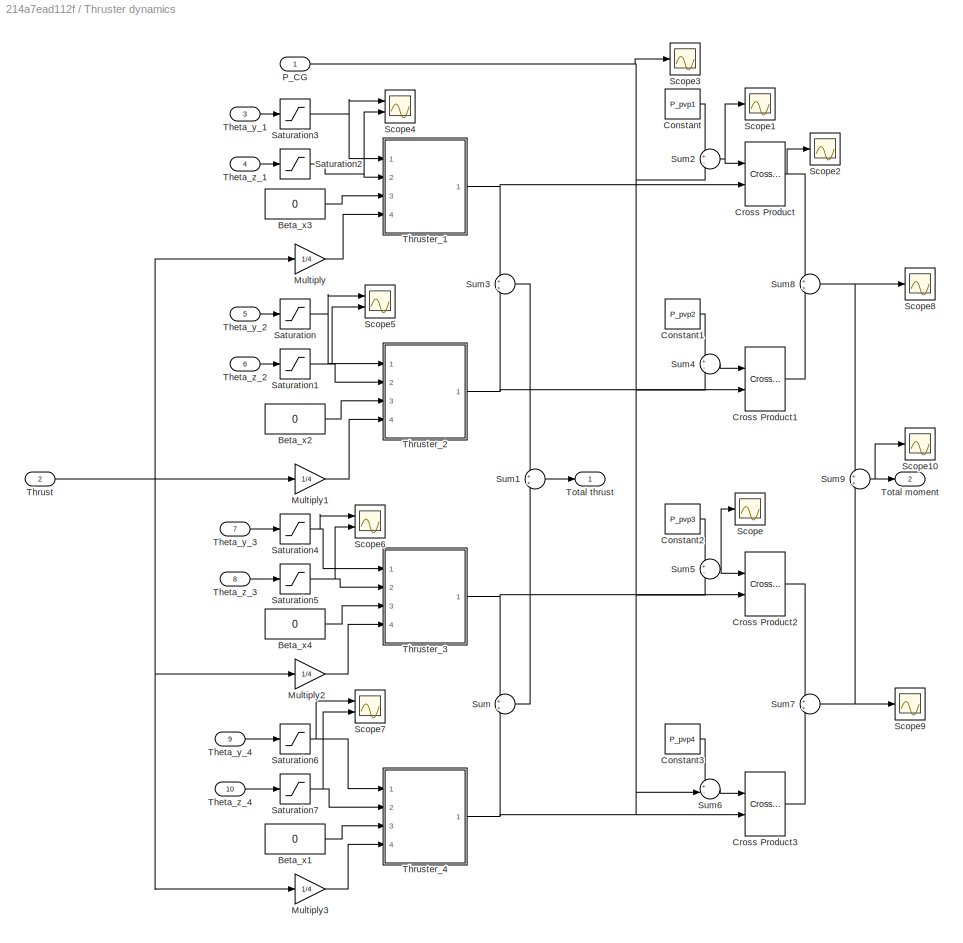
BLOCK [SubSystem] Thruster dynamics
  Ports = [10, 2]
  RequestExecContextInheritance = off
BLOCK [Constant] Thruster dynamics/Beta_x1
  Value = 0
BLOCK [Constant] Thruster dynamics/Beta_x2
  Value = 0
BLOCK [Constant] Thruster dynamics/Beta_x3
  Value = 0
BLOCK [Constant] Thruster dynamics/Beta_x4
  Value = 0
BLOCK [Constant] Thruster dynamics/Constant
  Value = P_pvp1
BLOCK [Constant] Thruster dynamics/Constant1
  Value = P_pvp2
BLOCK [Constant] Thruster dynamics/Constant2
  Value = P_pvp3
BLOCK [Constant] Thruster dynamics/Constant3
  Value = P_pvp4
BLOCK [Reference] Thruster dynamics/Cross Product  REF=vrlib/Utilities/Cross Product
  Ports = [2, 1]
  SourceBlock = vrlib/Utilities/Cross Product
  SourceProductBaseCode = SL
  SourceProductName = Simulink
  SourceType = Cross Product
BLOCK [Reference] Thruster dynamics/Cross Product1  REF=vrlib/Utilities/Cross Product
  Ports = [2, 1]
  SourceBlock = vrlib/Utilities/Cross Product
  SourceProductBaseCode = SL
  SourceProductName = Simulink
  SourceType = Cross Product
BLOCK [Reference] Thruster dynamics/Cross Product2  REF=vrlib/Utilities/Cross Product
  Ports = [2, 1]
  SourceBlock = vrlib/Utilities/Cross Product
  SourceProductBaseCode = SL
  SourceProductName = Simulink
  SourceType = Cross Product
BLOCK [Reference] Thruster dynamics/Cross Product3  REF=vrlib/Utilities/Cross Product
  Ports = [2, 1]
  SourceBlock = vrlib/Utilities/Cross Product
  SourceProductBaseCode = SL
  SourceProductName = Simulink
  SourceType = Cross Product
BLOCK [Gain] Thruster dynamics/Multiply
  Gain = 1/4
  OutDataTypeStr = Inherit: Inherit via internal rule
  ParamDataTypeStr = Inherit: Inherit via internal rule
  SaturateOnIntegerOverflow = off
BLOCK [Gain] Thruster dynamics/Multiply1
  Gain = 1/4
  OutDataTypeStr = Inherit: Inherit via internal rule
  ParamDataTypeStr = Inherit: Inherit via internal rule
  SaturateOnIntegerOverflow = off
BLOCK [Gain] Thruster dynamics/Multiply2
  Gain = 1/4
  OutDataTypeStr = Inherit: Inherit via internal rule
  ParamDataTypeStr = Inherit: Inherit via internal rule
  SaturateOnIntegerOverflow = off
BLOCK [Gain] Thruster dynamics/Multiply3
  Gain = 1/4
  OutDataTypeStr = Inherit: Inherit via internal rule
  ParamDataTypeStr = Inherit: Inherit via internal rule
  SaturateOnIntegerOverflow = off
BLOCK [Inport] Thruster dynamics/P_CG
  IconDisplay = Port number
BLOCK [Saturate] Thruster dynamics/Saturation
  InputPortMap = u0
  LowerLimit = deg2rad(-6)
  Ports = [1, 1]
  UpperLimit = deg2rad(6)
BLOCK [Saturate] Thruster dynamics/Saturation1
  InputPortMap = u0
  LowerLimit = deg2rad(-6)
  Ports = [1, 1]
  UpperLimit = deg2rad(6)
  ZeroCross = off
BLOCK [Saturate] Thruster dynamics/Saturation2
  InputPortMap = u0
  LowerLimit = deg2rad(-6)
  Ports = [1, 1]
  UpperLimit = deg2rad(6)
  ZeroCross = off
BLOCK [Saturate] Thruster dynamics/Saturation3
  InputPortMap = u0
  LowerLimit = deg2rad(-6)
  Ports = [1, 1]
  UpperLimit = deg2rad(6)
  ZeroCross = off
BLOCK [Saturate] Thruster dynamics/Saturation4
  InputPortMap = u0
  LowerLimit = deg2rad(-6)
  Ports = [1, 1]
  UpperLimit = deg2rad(6)
  ZeroCross = off
BLOCK [Saturate] Thruster dynamics/Saturation5
  InputPortMap = u0
  LowerLimit = deg2rad(-6)
  Ports = [1, 1]
  UpperLimit = deg2rad(6)
  ZeroCross = off
BLOCK [Saturate] Thruster dynamics/Saturation6
  InputPortMap = u0
  LowerLimit = deg2rad(-6)
  Ports = [1, 1]
  UpperLimit = deg2rad(6)
  ZeroCross = off
BLOCK [Saturate] Thruster dynamics/Saturation7
  InputPortMap = u0
  LowerLimit = deg2rad(-6)
  Ports = [1, 1]
  UpperLimit = deg2rad(6)
  ZeroCross = off
BLOCK [Scope] Thruster dynamics/Scope
  Floating = off
  NumInputPorts = 1
  Ports = [1]
  ScopeSpecificationString = Simulink.scopes.TimeScopeBlockCfg('CurrentConfiguration', extmgr.ConfigurationSet(extmgr.Configuration('Core','General UI',true),extmgr.Configuration('Core','Source UI',true),extmgr.Configuration('Sources','WiredSimulink',true,'DataLoggingVariableName','ScopeData3'),extmgr.Configuration('Visuals','Time Domain',true,'SerializedDisplays',{struct('MinYLimReal','-6.40036','MaxYLimReal','-5.14989','YLa...<+1432ch>
BLOCK [Scope] Thruster dynamics/Scope1
  Floating = off
  NumInputPorts = 1
  Ports = [1]
  ScopeSpecificationString = Simulink.scopes.TimeScopeBlockCfg('CurrentConfiguration', extmgr.ConfigurationSet(extmgr.Configuration('Core','General UI',true),extmgr.Configuration('Core','Source UI',true),extmgr.Configuration('Sources','WiredSimulink',true,'DataLoggingVariableName','ScopeData5'),extmgr.Configuration('Visuals','Time Domain',true,'SerializedDisplays',{struct('MinYLimReal','-10.07689','MaxYLimReal','2.23077','YLa...<+1434ch>
BLOCK [Scope] Thruster dynamics/Scope10
  Floating = off
  NumInputPorts = 1
  Ports = [1]
  ScopeSpecificationString = Simulink.scopes.TimeScopeBlockCfg('CurrentConfiguration', extmgr.ConfigurationSet(extmgr.Configuration('Core','General UI',true),extmgr.Configuration('Core','Source UI',true),extmgr.Configuration('Sources','WiredSimulink',true,'DataLoggingVariableName','ScopeData6'),extmgr.Configuration('Visuals','Time Domain',true,'SerializedDisplays',{struct('MinYLimReal','-2815.00082','MaxYLimReal','9356.02541'...<+1477ch>
BLOCK [Scope] Thruster dynamics/Scope2
  Floating = off
  NumInputPorts = 1
  Ports = [1]
  ScopeSpecificationString = Simulink.scopes.TimeScopeBlockCfg('CurrentConfiguration', extmgr.ConfigurationSet(extmgr.Configuration('Core','General UI',true),extmgr.Configuration('Core','Source UI',true),extmgr.Configuration('Sources','WiredSimulink',true,'DataLoggingVariableName','ScopeData6'),extmgr.Configuration('Visuals','Time Domain',true,'SerializedDisplays',{struct('MinYLimReal','-3558092.24093','MaxYLimReal','3008092....<+1503ch>
BLOCK [Scope] Thruster dynamics/Scope3
  Floating = off
  NumInputPorts = 1
  Ports = [1]
  ScopeSpecificationString = Simulink.scopes.TimeScopeBlockCfg('CurrentConfiguration', extmgr.ConfigurationSet(extmgr.Configuration('Core','General UI',true),extmgr.Configuration('Core','Source UI',true),extmgr.Configuration('Sources','WiredSimulink',true,'DataLoggingVariableName','ScopeData7'),extmgr.Configuration('Visuals','Time Domain',true,'SerializedDisplays',{struct('MinYLimReal','8.68083','MaxYLimReal','8.72353','YLabe...<+1428ch>
BLOCK [Scope] Thruster dynamics/Scope4
  Floating = off
  NumInputPorts = 2
  Ports = [2]
  ScopeSpecificationString = Simulink.scopes.TimeScopeBlockCfg('CurrentConfiguration', extmgr.ConfigurationSet(extmgr.Configuration('Core','General UI',true),extmgr.Configuration('Core','Source UI',true),extmgr.Configuration('Sources','WiredSimulink',true,'DataLoggingVariableName','ScopeData10'),extmgr.Configuration('Visuals','Time Domain',true,'SerializedDisplays',{struct('MinYLimReal','-0.4258','MaxYLimReal','0.48276','YLab...<+1430ch>
BLOCK [Scope] Thruster dynamics/Scope5
  Floating = off
  NumInputPorts = 2
  Ports = [2]
  ScopeSpecificationString = Simulink.scopes.TimeScopeBlockCfg('CurrentConfiguration', extmgr.ConfigurationSet(extmgr.Configuration('Core','General UI',true),extmgr.Configuration('Core','Source UI',true),extmgr.Configuration('Sources','WiredSimulink',true,'DataLoggingVariableName','ScopeData1'),extmgr.Configuration('Visuals','Time Domain',true,'SerializedDisplays',{struct('MinYLimReal','-0.1309','MaxYLimReal','0.1309','YLabel...<+1424ch>
BLOCK [Scope] Thruster dynamics/Scope6
  Floating = off
  NumInputPorts = 2
  Ports = [2]
  ScopeSpecificationString = Simulink.scopes.TimeScopeBlockCfg('CurrentConfiguration', extmgr.ConfigurationSet(extmgr.Configuration('Core','General UI',true),extmgr.Configuration('Core','Source UI',true),extmgr.Configuration('Sources','WiredSimulink',true,'DataLoggingVariableName','ScopeData2'),extmgr.Configuration('Visuals','Time Domain',true,'SerializedDisplays',{struct('MinYLimReal','-0.4258','MaxYLimReal','0.48276','YLabe...<+1429ch>
BLOCK [Scope] Thruster dynamics/Scope7
  Floating = off
  NumInputPorts = 2
  Ports = [2]
  ScopeSpecificationString = Simulink.scopes.TimeScopeBlockCfg('CurrentConfiguration', extmgr.ConfigurationSet(extmgr.Configuration('Core','General UI',true),extmgr.Configuration('Core','Source UI',true),extmgr.Configuration('Sources','WiredSimulink',true,'DataLoggingVariableName','ScopeData3'),extmgr.Configuration('Visuals','Time Domain',true,'SerializedDisplays',{struct('MinYLimReal','-0.4258','MaxYLimReal','0.48276','YLabe...<+1429ch>
BLOCK [Scope] Thruster dynamics/Scope8
  Floating = off
  NumInputPorts = 1
  Ports = [1]
  ScopeSpecificationString = Simulink.scopes.TimeScopeBlockCfg('CurrentConfiguration', extmgr.ConfigurationSet(extmgr.Configuration('Core','General UI',true),extmgr.Configuration('Core','Source UI',true),extmgr.Configuration('Sources','WiredSimulink',true,'DataLoggingVariableName','ScopeData4'),extmgr.Configuration('Visuals','Time Domain',true,'SerializedDisplays',{struct('MinYLimReal','-3558092.24093','MaxYLimReal','3008092....<+1476ch>
BLOCK [Scope] Thruster dynamics/Scope9
  Floating = off
  NumInputPorts = 1
  Ports = [1]
  ScopeSpecificationString = Simulink.scopes.TimeScopeBlockCfg('CurrentConfiguration', extmgr.ConfigurationSet(extmgr.Configuration('Core','General UI',true),extmgr.Configuration('Core','Source UI',true),extmgr.Configuration('Sources','WiredSimulink',true,'DataLoggingVariableName','ScopeData5'),extmgr.Configuration('Visuals','Time Domain',true,'SerializedDisplays',{struct('MinYLimReal','-3558092.24093','MaxYLimReal','3008092....<+1476ch>
BLOCK [Sum] Thruster dynamics/Sum
  IconShape = round
  InputSameDT = off
  OutDataTypeStr = Inherit: Inherit via internal rule
  Ports = [2, 1]
  SaturateOnIntegerOverflow = off
BLOCK [Sum] Thruster dynamics/Sum1
  IconShape = round
  InputSameDT = off
  OutDataTypeStr = Inherit: Inherit via internal rule
  Ports = [2, 1]
  SaturateOnIntegerOverflow = off
BLOCK [Sum] Thruster dynamics/Sum2
  IconShape = round
  InputSameDT = off
  Inputs = +-
  OutDataTypeStr = Inherit: Inherit via internal rule
  Ports = [2, 1]
  SaturateOnIntegerOverflow = off
BLOCK [Sum] Thruster dynamics/Sum3
  IconShape = round
  InputSameDT = off
  OutDataTypeStr = Inherit: Inherit via internal rule
  Ports = [2, 1]
  SaturateOnIntegerOverflow = off
BLOCK [Sum] Thruster dynamics/Sum4
  IconShape = round
  InputSameDT = off
  Inputs = +-
  OutDataTypeStr = Inherit: Inherit via internal rule
  Ports = [2, 1]
  SaturateOnIntegerOverflow = off
BLOCK [Sum] Thruster dynamics/Sum5
  IconShape = round
  InputSameDT = off
  Inputs = +-
  OutDataTypeStr = Inherit: Inherit via internal rule
  Ports = [2, 1]
  SaturateOnIntegerOverflow = off
BLOCK [Sum] Thruster dynamics/Sum6
  IconShape = round
  InputSameDT = off
  Inputs = +-
  OutDataTypeStr = Inherit: Inherit via internal rule
  Ports = [2, 1]
  SaturateOnIntegerOverflow = off
BLOCK [Sum] Thruster dynamics/Sum7
  IconShape = round
  InputSameDT = off
  OutDataTypeStr = Inherit: Inherit via internal rule
  Ports = [2, 1]
  SaturateOnIntegerOverflow = off
BLOCK [Sum] Thruster dynamics/Sum8
  IconShape = round
  InputSameDT = off
  OutDataTypeStr = Inherit: Inherit via internal rule
  Ports = [2, 1]
  SaturateOnIntegerOverflow = off
BLOCK [Sum] Thruster dynamics/Sum9
  IconShape = round
  InputSameDT = off
  OutDataTypeStr = Inherit: Inherit via internal rule
  Ports = [2, 1]
  SaturateOnIntegerOverflow = off
BLOCK [Inport] Thruster dynamics/Theta_y_1
  IconDisplay = Port number
  Port = 3
BLOCK [Inport] Thruster dynamics/Theta_y_2
  IconDisplay = Port number
  Port = 5
BLOCK [Inport] Thruster dynamics/Theta_y_3
  IconDisplay = Port number
  Port = 7
BLOCK [Inport] Thruster dynamics/Theta_y_4
  IconDisplay = Port number
  Port = 9
BLOCK [Inport] Thruster dynamics/Theta_z_1
  IconDisplay = Port number
  Port = 4
BLOCK [Inport] Thruster dynamics/Theta_z_2
  IconDisplay = Port number
  Port = 6
BLOCK [Inport] Thruster dynamics/Theta_z_3
  IconDisplay = Port number
  Port = 8
BLOCK [Inport] Thruster dynamics/Theta_z_4
  IconDisplay = Port number
  Port = 10
BLOCK [Inport] Thruster dynamics/Thrust
  IconDisplay = Port number
  Port = 2
BLOCK [SubSystem] Thruster dynamics/Thruster_1
  Ports = [4, 1]
  RequestExecContextInheritance = off
BLOCK [Inport] Thruster dynamics/Thruster_1/Beta_x
  IconDisplay = Port number
  Port = 3
BLOCK [Inport] Thruster dynamics/Thruster_1/Beta_y
  IconDisplay = Port number
BLOCK [Inport] Thruster dynamics/Thruster_1/Beta_z
  IconDisplay = Port number
  Port = 2
BLOCK [Product] Thruster dynamics/Thruster_1/Change frame1
  InputSameDT = off
  Inputs = 3
  Multiplication = Matrix(*)
  OutDataTypeStr = Inherit: Inherit via internal rule
  Ports = [3, 1]
  RndMeth = Floor
  SaturateOnIntegerOverflow = off
BLOCK [Mux] Thruster dynamics/Thruster_1/Mux
  DisplayOption = bar
  Inputs = 3
  Ports = [3, 1]
BLOCK [Reference] Thruster dynamics/Thruster_1/Rotation Angles to Direction Cosine Matrix  REF=sharedtransform/Rotation Angles to
Direction Cosine Matrix
  AttributesFormatString = Rotation Order: %<rotationOrder>
  Ports = [1, 1]
  SourceBlock = sharedtransform/Rotation Angles to\nDirection Cosine Matrix
  SourceProductBaseCode = AE
  SourceProductName = Aerospace Blockset
  SourceType = Ang2DCM
BLOCK [Inport] Thruster dynamics/Thruster_1/Thrust
  IconDisplay = Port number
  Port = 4
BLOCK [Constant] Thruster dynamics/Thruster_1/Thrust direction
  Value = [1 0 0]'
BLOCK [Outport] Thruster dynamics/Thruster_1/Thrust_vector
  IconDisplay = Port number
BLOCK [SubSystem] Thruster dynamics/Thruster_2
  Ports = [4, 1]
  RequestExecContextInheritance = off
BLOCK [Inport] Thruster dynamics/Thruster_2/Beta_x
  IconDisplay = Port number
  Port = 3
BLOCK [Inport] Thruster dynamics/Thruster_2/Beta_y
  IconDisplay = Port number
BLOCK [Inport] Thruster dynamics/Thruster_2/Beta_z
  IconDisplay = Port number
  Port = 2
BLOCK [Product] Thruster dynamics/Thruster_2/Change frame1
  InputSameDT = off
  Inputs = 3
  Multiplication = Matrix(*)
  OutDataTypeStr = Inherit: Inherit via internal rule
  Ports = [3, 1]
  RndMeth = Floor
  SaturateOnIntegerOverflow = off
BLOCK [Mux] Thruster dynamics/Thruster_2/Mux
  DisplayOption = bar
  Inputs = 3
  Ports = [3, 1]
BLOCK [Reference] Thruster dynamics/Thruster_2/Rotation Angles to Direction Cosine Matrix  REF=sharedtransform/Rotation Angles to
Direction Cosine Matrix
  AttributesFormatString = Rotation Order: %<rotationOrder>
  Ports = [1, 1]
  SourceBlock = sharedtransform/Rotation Angles to\nDirection Cosine Matrix
  SourceProductBaseCode = AE
  SourceProductName = Aerospace Blockset
  SourceType = Ang2DCM
BLOCK [Inport] Thruster dynamics/Thruster_2/Thrust
  IconDisplay = Port number
  Port = 4
BLOCK [Constant] Thruster dynamics/Thruster_2/Thrust direction
  Value = [1 0 0]'
BLOCK [Outport] Thruster dynamics/Thruster_2/Thrust_vector
  IconDisplay = Port number
BLOCK [SubSystem] Thruster dynamics/Thruster_3
  Ports = [4, 1]
  RequestExecContextInheritance = off
BLOCK [Inport] Thruster dynamics/Thruster_3/Beta_x
  IconDisplay = Port number
  Port = 3
BLOCK [Inport] Thruster dynamics/Thruster_3/Beta_y
  IconDisplay = Port number
BLOCK [Inport] Thruster dynamics/Thruster_3/Beta_z
  IconDisplay = Port number
  Port = 2
BLOCK [Product] Thruster dynamics/Thruster_3/Change frame1
  InputSameDT = off
  Inputs = 3
  Multiplication = Matrix(*)
  OutDataTypeStr = Inherit: Inherit via internal rule
  Ports = [3, 1]
  RndMeth = Floor
  SaturateOnIntegerOverflow = off
BLOCK [Mux] Thruster dynamics/Thruster_3/Mux
  DisplayOption = bar
  Inputs = 3
  Ports = [3, 1]
BLOCK [Reference] Thruster dynamics/Thruster_3/Rotation Angles to Direction Cosine Matrix  REF=sharedtransform/Rotation Angles to
Direction Cosine Matrix
  AttributesFormatString = Rotation Order: %<rotationOrder>
  Ports = [1, 1]
  SourceBlock = sharedtransform/Rotation Angles to\nDirection Cosine Matrix
  SourceProductBaseCode = AE
  SourceProductName = Aerospace Blockset
  SourceType = Ang2DCM
BLOCK [Inport] Thruster dynamics/Thruster_3/Thrust
  IconDisplay = Port number
  Port = 4
BLOCK [Constant] Thruster dynamics/Thruster_3/Thrust direction
  Value = [1 0 0]'
BLOCK [Outport] Thruster dynamics/Thruster_3/Thrust_vector
  IconDisplay = Port number
BLOCK [SubSystem] Thruster dynamics/Thruster_4
  Ports = [4, 1]
  RequestExecContextInheritance = off
BLOCK [Inport] Thruster dynamics/Thruster_4/Beta_x
  IconDisplay = Port number
  Port = 3
BLOCK [Inport] Thruster dynamics/Thruster_4/Beta_y
  IconDisplay = Port number
BLOCK [Inport] Thruster dynamics/Thruster_4/Beta_z
  IconDisplay = Port number
  Port = 2
BLOCK [Product] Thruster dynamics/Thruster_4/Change frame1
  InputSameDT = off
  Inputs = 3
  Multiplication = Matrix(*)
  OutDataTypeStr = Inherit: Inherit via internal rule
  Ports = [3, 1]
  RndMeth = Floor
  SaturateOnIntegerOverflow = off
BLOCK [Mux] Thruster dynamics/Thruster_4/Mux
  DisplayOption = bar
  Inputs = 3
  Ports = [3, 1]
BLOCK [Reference] Thruster dynamics/Thruster_4/Rotation Angles to Direction Cosine Matrix  REF=sharedtransform/Rotation Angles to
Direction Cosine Matrix
  AttributesFormatString = Rotation Order: %<rotationOrder>
  Ports = [1, 1]
  SourceBlock = sharedtransform/Rotation Angles to\nDirection Cosine Matrix
  SourceProductBaseCode = AE
  SourceProductName = Aerospace Blockset
  SourceType = Ang2DCM
BLOCK [Inport] Thruster dynamics/Thruster_4/Thrust
  IconDisplay = Port number
  Port = 4
BLOCK [Constant] Thruster dynamics/Thruster_4/Thrust direction
  Value = [1 0 0]'
BLOCK [Outport] Thruster dynamics/Thruster_4/Thrust_vector
  IconDisplay = Port number
BLOCK [Outport] Thruster dynamics/Total moment
  IconDisplay = Port number
  Port = 2
BLOCK [Outport] Thruster dynamics/Total thrust
  IconDisplay = Port number
BLOCK [Scope] aoa sideslip 
  Floating = off
  NumInputPorts = 2
  Ports = [2]
  ScopeSpecificationString = Simulink.scopes.TimeScopeBlockCfg('CurrentConfiguration', extmgr.ConfigurationSet(extmgr.Configuration('Core','General UI',true),extmgr.Configuration('Core','Source UI',true),extmgr.Configuration('Sources','WiredSimulink',true,'DataLoggingVariableName','ScopeData3'),extmgr.Configuration('Visuals','Time Domain',true,'SerializedDisplays',{struct('MinYLimReal','-0.16007','MaxYLimReal','0.20798','YLab...<+1503ch>
BLOCK [SubSystem] dynamics
  ErrorFcn = Stateflow.Translate.translate
  PermitHierarchicalResolution = ExplicitOnly
  Ports = [11, 6]
  RequestExecContextInheritance = off
  SFBlockType = MATLAB Function
  TreatAsAtomicUnit = on
BLOCK [Demux] dynamics/ Demux 
  Outputs = 1
  Ports = [1, 1]
BLOCK [S-Function] dynamics/ SFunction 
  EnableBusSupport = on
  FunctionName = sf_sfun
  PortCounts = [11 7]
  Ports = [11, 7]
  SFcnIsStateOwnerBlock = off
  SFunctionDeploymentMode = off
  Tag = Stateflow S-Function 2
BLOCK [Terminator] dynamics/ Terminator 
BLOCK [Inport] dynamics/Anoz
  IconDisplay = Port number
  Port = 4
BLOCK [Inport] dynamics/F_eci
  IconDisplay = Port number
  Port = 6
BLOCK [Inport] dynamics/J
  IconDisplay = Port number
  Port = 9
BLOCK [Inport] dynamics/Jdot
  IconDisplay = Port number
  Port = 10
BLOCK [Inport] dynamics/M_body
  IconDisplay = Port number
  Port = 7
BLOCK [Inport] dynamics/Mjet
  IconDisplay = Port number
  Port = 11
BLOCK [Inport] dynamics/P
  IconDisplay = Port number
  Port = 5
BLOCK [Inport] dynamics/T_eci
  IconDisplay = Port number
  Port = 2
BLOCK [Inport] dynamics/aeng
  IconDisplay = Port number
  Port = 3
BLOCK [Inport] dynamics/g_eci
  IconDisplay = Port number
  Port = 8
BLOCK [Outport] dynamics/mdot
  IconDisplay = Port number
  Port = 2
BLOCK [Outport] dynamics/qdot
  IconDisplay = Port number
  Port = 5
BLOCK [Outport] dynamics/rdot
  IconDisplay = Port number
  Port = 3
BLOCK [Outport] dynamics/vdot
  IconDisplay = Port number
  Port = 4
BLOCK [Outport] dynamics/wdot
  IconDisplay = Port number
  Port = 6
BLOCK [Inport] dynamics/x
  IconDisplay = Port number
BLOCK [Outport] dynamics/xdot
  IconDisplay = Port number
BLOCK [Scope] m
  Floating = off
  NumInputPorts = 1
  Ports = [1]
  ScopeSpecificationString = Simulink.scopes.TimeScopeBlockCfg('CurrentConfiguration', extmgr.ConfigurationSet(extmgr.Configuration('Core','General UI',true),extmgr.Configuration('Core','Source UI',true),extmgr.Configuration('Sources','WiredSimulink',true),extmgr.Configuration('Visuals','Time Domain',true,'SerializedDisplays',{struct('MinYLimReal','108369.75013','MaxYLimReal','138418.91665','YLabelReal','','MinYLimMag','10836...<+1389ch>
BLOCK [MATLABFcn] norm of velocity
  MATLABFcn = norm
  Output1D = off
  Ports = [1, 1]
BLOCK [MATLABFcn] norm of velocity1
  MATLABFcn = norm
  Output1D = off
  Ports = [1, 1]
BLOCK [Scope] q
  Floating = off
  NumInputPorts = 1
  Ports = [1]
  ScopeSpecificationString = Simulink.scopes.TimeScopeBlockCfg('CurrentConfiguration', extmgr.ConfigurationSet(extmgr.Configuration('Core','General UI',true),extmgr.Configuration('Core','Source UI',true),extmgr.Configuration('Sources','WiredSimulink',true,'DataLoggingVariableName','ScopeData3'),extmgr.Configuration('Visuals','Time Domain',true,'SerializedDisplays',{struct('MinYLimReal','-1.1194','MaxYLimReal','1.11925','YLabe...<+1458ch>
BLOCK [MATLABFcn] quaternion to  rotation matrix
  MATLABFcn = quat2dcm
  Output1D = off
  Ports = [1, 1]
BLOCK [MATLABFcn] quaternion to  rotation matrix1
  MATLABFcn = quat2dcm
  Output1D = off
  Ports = [1, 1]
BLOCK [Scope] r
  Floating = off
  NumInputPorts = 1
  Ports = [1]
  ScopeSpecificationString = Simulink.scopes.TimeScopeBlockCfg('CurrentConfiguration', extmgr.ConfigurationSet(extmgr.Configuration('Core','General UI',true),extmgr.Configuration('Core','Source UI',true),extmgr.Configuration('Sources','WiredSimulink',true,'DataLoggingVariableName','ScopeData1'),extmgr.Configuration('Visuals','Time Domain',true,'SerializedDisplays',{struct('MinYLimReal','27531.87182','MaxYLimReal','5609967.081...<+1418ch>
BLOCK [SubSystem] to vr 
  Ports = [1, 1]
  RequestExecContextInheritance = off
BLOCK [Constant] to vr /Constant7
  Value = sim_dcm
BLOCK [Inport] to vr /In1
  IconDisplay = Port number
BLOCK [Product] to vr /MatrixMultiply
  InputSameDT = off
  Multiplication = Matrix(*)
  OutDataTypeStr = Inherit: Inherit via internal rule
  Ports = [2, 1]
  RndMeth = Floor
  SaturateOnIntegerOverflow = off
BLOCK [Outport] to vr /Out1
  IconDisplay = Port number
BLOCK [SubSystem] to vr 1
  Ports = [1, 1]
  RequestExecContextInheritance = off
BLOCK [Constant] to vr 1/Constant7
  Value = sim_dcm
BLOCK [Inport] to vr 1/In1
  IconDisplay = Port number
BLOCK [Product] to vr 1/MatrixMultiply
  InputSameDT = off
  Multiplication = Matrix(*)
  OutDataTypeStr = Inherit: Inherit via internal rule
  Ports = [2, 1]
  RndMeth = Floor
  SaturateOnIntegerOverflow = off
BLOCK [Outport] to vr 1/Out1
  IconDisplay = Port number
BLOCK [Scope] v
  Floating = off
  NumInputPorts = 1
  Ports = [1]
  ScopeSpecificationString = Simulink.scopes.TimeScopeBlockCfg('CurrentConfiguration', extmgr.ConfigurationSet(extmgr.Configuration('Core','General UI',true),extmgr.Configuration('Core','Source UI',true),extmgr.Configuration('Sources','WiredSimulink',true,'DataLoggingVariableName','ScopeData2'),extmgr.Configuration('Visuals','Time Domain',true,'SerializedDisplays',{struct('MinYLimReal','-474.69935','MaxYLimReal','590.80154','...<+1468ch>
BLOCK [Scope] w
  Floating = off
  NumInputPorts = 1
  Ports = [1]
  ScopeSpecificationString = Simulink.scopes.TimeScopeBlockCfg('CurrentConfiguration', extmgr.ConfigurationSet(extmgr.Configuration('Core','General UI',true),extmgr.Configuration('Core','Source UI',true),extmgr.Configuration('Sources','WiredSimulink',true,'DataLoggingVariableName','ScopeData4'),extmgr.Configuration('Visuals','Time Domain',true,'SerializedDisplays',{struct('MinYLimReal','-0.00006','MaxYLimReal','0.00035','YLab...<+1403ch>
ANNOTATION (root): Air forces
ANNOTATION (root): Atmosphere
ANNOTATION (root): Control
ANNOTATION (root): Dynamics
ANNOTATION (root): Gravity
ANNOTATION (root): States
ANNOTATION (root): Vind direction
ANNOTATION Controller: Inputs
ANNOTATION Controller: Outputs
ANNOTATION Controller: Trajectory
NET Air torgue/CG:1 -> Air torgue/Scope2:1, Air torgue/Sum4:2
LINE Air torgue/CP:1 -> Air torgue/MatrixMultiply:2
LINE Air torgue/Constant:1 -> Air torgue/MatrixMultiply:1
LINE Air torgue/Cross Product1:1 -> Air torgue/Out1:1
LINE Air torgue/F_body:1 -> Air torgue/Cross Product1:2
NET Air torgue/MatrixMultiply:1 -> Air torgue/Scope1:1, Air torgue/Sum4:1
NET Air torgue/Sum4:1 -> Air torgue/Cross Product1:1, Air torgue/Scope:1
NET Air torgue:1 -> M_body:1, Sum3:1
LINE Atmosphere:1 -> Scope20:1
NET Atmosphere:2 -> Scope25:1, dynamics:5
NET Atmosphere:3 -> Scope29:1, Subsystem1:3
NET Atmosphere:4 -> Mach :1, Subsystem1:1
NET CenterOfGravity_Inertia:1 -> Air torgue:3, Scope4:2, Thruster dynamics:1
NET CenterOfGravity_Inertia:2 -> Derivative:1, Display1:1, Scope:1, dynamics:9
NET Change frame:1 -> Scope22:1, dynamics:2
LINE Clock:1 -> Interpreted MATLAB Function:1
NET Constant10:1 -> CenterOfGravity_Inertia:3, Scope27:1
LINE Constant11:1 -> ECI_0 to ECEF:1
LINE Constant12:1 -> CenterOfGravity_Inertia:4
LINE Constant13:1 -> CenterOfGravity_Inertia:5
LINE Constant14:1 -> CenterOfGravity_Inertia:6
LINE Constant15:1 -> CenterOfGravity_Inertia:7
LINE Constant16:1 -> CenterOfGravity_Inertia:8
NET Constant17:1 -> Display2:1, Scope:2
LINE Constant1:1 -> dynamics:3
LINE Constant2:1 -> dynamics:4
NET Constant3:1 -> Integrator1:2, Scope30:1
LINE Constant4:1 -> Scope4:1
LINE Constant5:1 -> CenterOfGravity_Inertia:2
LINE Constant6:1 -> dynamics:11
LINE Constant7:1 -> Sum5:2
LINE Constant9:1 -> Atmosphere:3
LINE Constant:1 -> Cross Product:1
LINE Controller/C_BI:1 -> Controller/ECI to ECEF1:1
NET Controller/Change frame1:1 -> Controller/Demux:1, Controller/Scope10:1
NET Controller/Clock:1 -> Controller/Switch1:2, Controller/Switch:2, Controller/Trajectory_Pitch:1, Controller/Trajectory_Thrust:1, Controller/Trajectory_Time:1
LINE Controller/Constant1:1 -> Controller/MatrixMultiply:2
NET Controller/Demux:2 -> Controller/Integrator1:1, Controller/Pitch controller1:3
NET Controller/Demux:3 -> Controller/Integrator:1, Controller/Pitch controller:4, Controller/Scope8:1
LINE Controller/Derivative1:1 -> Controller/Switch1:1
LINE Controller/Derivative2:1 -> Controller/Switch1:3
LINE Controller/Derivative3:1 -> Controller/Pitch controller1:2
LINE Controller/Derivative4:1 -> Controller/Pitch controller2:2
LINE Controller/ECEF to Launchpad/Change frame2:1 -> Controller/ECEF to Launchpad/vector_L:1
LINE Controller/ECEF to Launchpad/ECEF to L 2:1 -> Controller/ECEF to Launchpad/Math Function1:1
LINE Controller/ECEF to Launchpad/Math Function1:1 -> Controller/ECEF to Launchpad/Change frame2:1
LINE Controller/ECEF to Launchpad/vector_E :1 -> Controller/ECEF to Launchpad/Change frame2:2
LINE Controller/ECEF to Launchpad:1 -> Controller/MatrixMultiply:1
LINE Controller/ECI to ECEF1/Change frame2:1 -> Controller/ECI to ECEF1/v_E:1
LINE Controller/ECI to ECEF1/Clock1:1 -> Controller/ECI to ECEF1/MATLAB Function1:1
LINE Controller/ECI to ECEF1/Constant1:1 -> Controller/ECI to ECEF1/MATLAB Function1:2
LINE Controller/ECI to ECEF1/ECEF to L 2:1 -> Controller/ECI to ECEF1/Change frame2:2
LINE Controller/ECI to ECEF1/MATLAB Function1:1 -> Controller/ECI to ECEF1/Change frame2:1
LINE Controller/ECI to ECEF1/v_I :1 -> Controller/ECI to ECEF1/Change frame2:3
NET Controller/ECI to ECEF1:1 -> Controller/ECEF to Launchpad:1, Controller/Math Function1:1
LINE Controller/Integrator1:1 -> Controller/Pitch controller1:4
NET Controller/Integrator:1 -> Controller/Pitch controller:3, Controller/Scope9:1
LINE Controller/Math Function1:1 -> Controller/Change frame1:1
LINE Controller/MatrixMultiply:1 -> Controller/PYR:1
NET Controller/Multiply1:1 -> Controller/Derivative3:1, Controller/Pitch controller1:1
NET Controller/Multiply2:1 -> Controller/Derivative4:1, Controller/Pitch controller2:1
NET Controller/Multiply3:1 -> Controller/Sum1:2, Controller/Sum2:2, Controller/Sum3:2, Controller/Sum4:2
NET Controller/Multiply:1 -> Controller/Derivative1:1, Controller/Scope3:1, Controller/Switch:1
NET Controller/PYR:1 -> Controller/Scope6:1, Controller/Sum:2, Controller/pir:1, Controller/pitch form launchpad:1
NET Controller/PYR:2 -> Controller/Multiply1:1, Controller/Scope6:2, Controller/yaw:1
NET Controller/PYR:3 -> Controller/Multiply2:1, Controller/Scope6:3, Controller/roll :1
LINE Controller/Pitch controller/Constant:1 -> Controller/Pitch controller/MatrixMultiply:1
LINE Controller/Pitch controller/Demux:1 -> Controller/Pitch controller/engine set 1:1
LINE Controller/Pitch controller/Demux:2 -> Controller/Pitch controller/engine set 2:1
NET Controller/Pitch controller/MatrixMultiply:1 -> Controller/Pitch controller/Demux:1, Controller/Pitch controller/Saturation3:1, Controller/Pitch controller/controller output pitch:1
LINE Controller/Pitch controller/Mux:1 -> Controller/Pitch controller/MatrixMultiply:2
LINE Controller/Pitch controller/Saturation3:1 -> Controller/Pitch controller/controller output pitch:2
NET Controller/Pitch controller/Theta:1 -> Controller/Pitch controller/Mux:1, Controller/Pitch controller/theta_pitch:1
NET Controller/Pitch controller/Theta_dot:1 -> Controller/Pitch controller/Mux:2, Controller/Pitch controller/theta_dot_pitch:1
NET Controller/Pitch controller/z:1 -> Controller/Pitch controller/Mux:3, Controller/Pitch controller/Scope3:1
NET Controller/Pitch controller/z_dot:1 -> Controller/Pitch controller/Mux:4, Controller/Pitch controller/Scope4:1
LINE Controller/Pitch controller1/Constant:1 -> Controller/Pitch controller1/MatrixMultiply:1
LINE Controller/Pitch controller1/Demux:1 -> Controller/Pitch controller1/engine set 1:1
LINE Controller/Pitch controller1/Demux:2 -> Controller/Pitch controller1/engine set 2:1
NET Controller/Pitch controller1/MatrixMultiply:1 -> Controller/Pitch controller1/Demux:1, Controller/Pitch controller1/Saturation3:1, Controller/Pitch controller1/controller output yaw:1
LINE Controller/Pitch controller1/Mux:1 -> Controller/Pitch controller1/MatrixMultiply:2
LINE Controller/Pitch controller1/Saturation3:1 -> Controller/Pitch controller1/controller output yaw:2
NET Controller/Pitch controller1/Theta:1 -> Controller/Pitch controller1/Mux:1, Controller/Pitch controller1/theta_pitch:1
NET Controller/Pitch controller1/Theta_dot:1 -> Controller/Pitch controller1/Mux:2, Controller/Pitch controller1/theta_dot_pitch:1
NET Controller/Pitch controller1/z:1 -> Controller/Pitch controller1/Mux:3, Controller/Pitch controller1/Scope3:1
NET Controller/Pitch controller1/z_dot:1 -> Controller/Pitch controller1/Mux:4, Controller/Pitch controller1/Scope4:1
NET Controller/Pitch controller1:1 -> Controller/Sum2:1, Controller/Sum4:1
NET Controller/Pitch controller1:2 -> Controller/Thruster_z_1:1, Controller/Thruster_z_3:1
LINE Controller/Pitch controller2/Constant:1 -> Controller/Pitch controller2/MatrixMultiply:1
NET Controller/Pitch controller2/MatrixMultiply:1 -> Controller/Pitch controller2/Saturation3:1, Controller/Pitch controller2/controller output roll:1, Controller/Pitch controller2/engine set 1:1
LINE Controller/Pitch controller2/Mux:1 -> Controller/Pitch controller2/MatrixMultiply:2
LINE Controller/Pitch controller2/Saturation3:1 -> Controller/Pitch controller2/controller output roll:2
NET Controller/Pitch controller2/Theta:1 -> Controller/Pitch controller2/Mux:1, Controller/Pitch controller2/theta_pitch:1
NET Controller/Pitch controller2/Theta_dot:1 -> Controller/Pitch controller2/Mux:2, Controller/Pitch controller2/theta_dot_pitch:1
LINE Controller/Pitch controller2:1 -> Controller/Multiply3:1
NET Controller/Pitch controller:1 -> Controller/Sum1:1, Controller/Sum3:1
NET Controller/Pitch controller:2 -> Controller/Thruster_y_2:1, Controller/Thruster_y_4:1
LINE Controller/Sum1:1 -> Controller/Thruster_y_1:1
LINE Controller/Sum2:1 -> Controller/Thruster_z_2:1
LINE Controller/Sum3:1 -> Controller/Thruster_y_3:1
LINE Controller/Sum4:1 -> Controller/Thruster_z_4:1
NET Controller/Sum:1 -> Controller/Derivative2:1, Controller/Scope5:1, Controller/Switch:3
NET Controller/Switch1:1 -> Controller/Pitch controller:2, Controller/pitch dot:1
NET Controller/Switch:1 -> Controller/Pitch controller:1, Controller/Scope4:1, Controller/pitch error:1
NET Controller/Trajectory_Pitch:1 -> Controller/Scope2:1, Controller/deg2rad:1
NET Controller/Trajectory_Thrust:1 -> Controller/Scope:1, Controller/Thrust:1
LINE Controller/Trajectory_Time:1 -> Controller/Scope1:1
LINE Controller/aoa:1 -> Controller/Multiply:1
LINE Controller/deg2rad:1 -> Controller/Sum:1
NET Controller/mass:1 -> Controller/Pitch controller1:5, Controller/Pitch controller2:3, Controller/Pitch controller:5
NET Controller/norm of velocity1:1 -> Controller/Pitch controller1:6, Controller/Pitch controller2:4, Controller/Pitch controller:6
NET Controller/v_E:1 -> Controller/Change frame1:2, Controller/norm of velocity1:1
LINE Controller:1 -> Thruster dynamics:2
LINE Controller:2 -> Thruster dynamics:3
LINE Controller:3 -> Thruster dynamics:4
LINE Controller:4 -> Thruster dynamics:5
LINE Controller:5 -> Thruster dynamics:6
LINE Controller:6 -> Thruster dynamics:7
LINE Controller:7 -> Thruster dynamics:8
LINE Controller:8 -> Thruster dynamics:9
LINE Controller:9 -> Thruster dynamics:10
LINE Cross Product:1 -> Sum1:2
NET Demux:1 -> Controller:3, m:1
NET Demux:2 -> Cross Product:2, ECI to ECEF:1, Subsystem2:1, r:1
NET Demux:3 -> Sum1:1, v:1
NET Demux:4 -> Math Function2:1, Math Function:1, q:1
LINE Demux:5 -> w:1
NET Derivative:1 -> Scope24:1, dynamics:10
LINE ECEF Position to LLA :1 -> Matrix Concatenate:1
NET ECEF Position to LLA :2 -> Atmosphere:1, Matrix Concatenate:2
LINE ECEF to Launchpad /Change frame2:1 -> ECEF to Launchpad /vector_L:1
LINE ECEF to Launchpad /ECEF to L 2:1 -> ECEF to Launchpad /Math Function1:1
LINE ECEF to Launchpad /Math Function1:1 -> ECEF to Launchpad /Change frame2:1
LINE ECEF to Launchpad /vector_E :1 -> ECEF to Launchpad /Change frame2:2
LINE ECEF to Launchpad 1/Change frame2:1 -> ECEF to Launchpad 1/vector_L:1
LINE ECEF to Launchpad 1/ECEF to L 2:1 -> ECEF to Launchpad 1/Math Function1:1
LINE ECEF to Launchpad 1/Math Function1:1 -> ECEF to Launchpad 1/Change frame2:1
LINE ECEF to Launchpad 1/vector_E :1 -> ECEF to Launchpad 1/Change frame2:2
NET ECEF to Launchpad 1:1 -> Scope34:1, to vr :1
NET ECEF to Launchpad :1 -> Launchpad position:1, to vr 1:1
LINE ECEF to Launchpad/Change frame2:1 -> ECEF to Launchpad/vector_L:1
LINE ECEF to Launchpad/ECEF to L 2:1 -> ECEF to Launchpad/Math Function1:1
LINE ECEF to Launchpad/Math Function1:1 -> ECEF to Launchpad/Change frame2:1
LINE ECEF to Launchpad/vector_E :1 -> ECEF to Launchpad/Change frame2:2
LINE ECEF to Launchpad:1 -> Scope7:1
LINE ECI ot Launch Pad/ECEF to Launchpad 1/Change frame2:1 -> ECI ot Launch Pad/ECEF to Launchpad 1/vector_L:1
LINE ECI ot Launch Pad/ECEF to Launchpad 1/ECEF to L 2:1 -> ECI ot Launch Pad/ECEF to Launchpad 1/Math Function1:1
LINE ECI ot Launch Pad/ECEF to Launchpad 1/Math Function1:1 -> ECI ot Launch Pad/ECEF to Launchpad 1/Change frame2:1
LINE ECI ot Launch Pad/ECEF to Launchpad 1/vector_E :1 -> ECI ot Launch Pad/ECEF to Launchpad 1/Change frame2:2
LINE ECI ot Launch Pad/ECEF to Launchpad 1:1 -> ECI ot Launch Pad/Out1:1
LINE ECI ot Launch Pad/ECI to ECEF4/Change frame2:1 -> ECI ot Launch Pad/ECI to ECEF4/v_E:1
LINE ECI ot Launch Pad/ECI to ECEF4/Clock1:1 -> ECI ot Launch Pad/ECI to ECEF4/MATLAB Function1:1
LINE ECI ot Launch Pad/ECI to ECEF4/Constant1:1 -> ECI ot Launch Pad/ECI to ECEF4/MATLAB Function1:2
LINE ECI ot Launch Pad/ECI to ECEF4/ECEF to L 2:1 -> ECI ot Launch Pad/ECI to ECEF4/Change frame2:2
LINE ECI ot Launch Pad/ECI to ECEF4/MATLAB Function1:1 -> ECI ot Launch Pad/ECI to ECEF4/Change frame2:1
LINE ECI ot Launch Pad/ECI to ECEF4/v_I :1 -> ECI ot Launch Pad/ECI to ECEF4/Change frame2:3
LINE ECI ot Launch Pad/ECI to ECEF4:1 -> ECI ot Launch Pad/ECEF to Launchpad 1:1
LINE ECI ot Launch Pad/In1:1 -> ECI ot Launch Pad/ECI to ECEF4:1
LINE ECI ot Launch Pad:1 -> Scope33:1
LINE ECI to ECEF/Change frame2:1 -> ECI to ECEF/v_E:1
LINE ECI to ECEF/Clock1:1 -> ECI to ECEF/MATLAB Function1:1
LINE ECI to ECEF/Constant1:1 -> ECI to ECEF/MATLAB Function1:2
LINE ECI to ECEF/ECEF to L 2:1 -> ECI to ECEF/Change frame2:2
LINE ECI to ECEF/MATLAB Function1:1 -> ECI to ECEF/Change frame2:1
LINE ECI to ECEF/v_I :1 -> ECI to ECEF/Change frame2:3
LINE ECI to ECEF1/Change frame2:1 -> ECI to ECEF1/v_E:1
LINE ECI to ECEF1/Clock1:1 -> ECI to ECEF1/MATLAB Function1:1
LINE ECI to ECEF1/Constant1:1 -> ECI to ECEF1/MATLAB Function1:2
LINE ECI to ECEF1/ECEF to L 2:1 -> ECI to ECEF1/Change frame2:2
LINE ECI to ECEF1/MATLAB Function1:1 -> ECI to ECEF1/Change frame2:1
LINE ECI to ECEF1/v_I :1 -> ECI to ECEF1/Change frame2:3
NET ECI to ECEF1:1 -> Controller:2, ECEF to Launchpad:1, Scope6:1, Subsystem3:2, norm of velocity:1
LINE ECI to ECEF2/Change frame2:1 -> ECI to ECEF2/v_E:1
LINE ECI to ECEF2/Clock1:1 -> ECI to ECEF2/MATLAB Function1:1
LINE ECI to ECEF2/Constant1:1 -> ECI to ECEF2/MATLAB Function1:2
LINE ECI to ECEF2/ECEF to L 2:1 -> ECI to ECEF2/Change frame2:2
LINE ECI to ECEF2/MATLAB Function1:1 -> ECI to ECEF2/Change frame2:1
LINE ECI to ECEF2/v_I :1 -> ECI to ECEF2/Change frame2:3
LINE ECI to ECEF2:1 -> Subsystem3:1
NET ECI to ECEF:1 -> ECEF Position to LLA :1, Sum:1
LINE ECI_0 to ECEF/Constant12:1 -> ECI_0 to ECEF/MatrixMultiply:1
LINE ECI_0 to ECEF/ECI_0:1 -> ECI_0 to ECEF/MatrixMultiply:2
LINE ECI_0 to ECEF/MatrixMultiply:1 -> ECI_0 to ECEF/ECEF:1
LINE ECI_0 to ECEF:1 -> Sum:2
LINE Initial state:1 -> Integrator:2
NET Integrator1:1 -> CenterOfGravity_Inertia:1, Scope30:2
NET Integrator:1 -> Demux:1, dynamics:1
LINE Interpreted MATLAB Function1:1 -> dynamics:7
LINE MATLAB Function:1 -> Math Function1:1
LINE Math Function1:1 -> Subsystem5:2
LINE Math Function2:1 -> quaternion to  rotation matrix1:1
LINE Math Function:1 -> quaternion to  rotation matrix:1
LINE Matrix Concatenate:1 -> Subsystem2:2
LINE NaN remover /Constant4:1 -> NaN remover /Switch:1
NET NaN remover /In1:1 -> NaN remover /IsNaN:1, NaN remover /Switch:3
NET NaN remover /IsNaN:1 -> NaN remover /NaN :1, NaN remover /Switch:2
LINE NaN remover /Switch:1 -> NaN remover /Out1:1
LINE NaN remover 1/Constant4:1 -> NaN remover 1/Switch:1
NET NaN remover 1/In1:1 -> NaN remover 1/IsNaN:1, NaN remover 1/Switch:3
NET NaN remover 1/IsNaN:1 -> NaN remover 1/NaN :1, NaN remover 1/Switch:2
LINE NaN remover 1/Switch:1 -> NaN remover 1/Out1:1
NET NaN remover 1:1 -> Controller:4, MATLAB Function:1, aoa sideslip :1
LINE NaN remover 2/Constant4:1 -> NaN remover 2/Switch:1
NET NaN remover 2/In1:1 -> NaN remover 2/IsNaN:1, NaN remover 2/Switch:3
NET NaN remover 2/IsNaN:1 -> NaN remover 2/NaN :1, NaN remover 2/Switch:2
LINE NaN remover 2/Switch:1 -> NaN remover 2/Out1:1
NET NaN remover 2:1 -> Controller:5, MATLAB Function:2, aoa sideslip :2
LINE NaN remover :1 -> Subsystem5:1
NET Rotation Matrix to VR Rotation:1 -> 3d_sim :1, Scope15:2
LINE Signal Specification:1 -> Sum4:1
LINE Subsystem/Constant12:1 -> Subsystem/MatrixMultiply1:2
LINE Subsystem/Constant14:1 -> Subsystem/MatrixMultiply2:2
LINE Subsystem/Constant15:1 -> Subsystem/MatrixMultiply3:2
LINE Subsystem/Constant9:1 -> Subsystem/MatrixMultiply:2
LINE Subsystem/ECI to ECEF2/Change frame2:1 -> Subsystem/ECI to ECEF2/v_E:1
LINE Subsystem/ECI to ECEF2/Clock1:1 -> Subsystem/ECI to ECEF2/MATLAB Function1:1
LINE Subsystem/ECI to ECEF2/Constant1:1 -> Subsystem/ECI to ECEF2/MATLAB Function1:2
LINE Subsystem/ECI to ECEF2/ECEF to L 2:1 -> Subsystem/ECI to ECEF2/Change frame2:2
LINE Subsystem/ECI to ECEF2/MATLAB Function1:1 -> Subsystem/ECI to ECEF2/Transpose:1
LINE Subsystem/ECI to ECEF2/Transpose:1 -> Subsystem/ECI to ECEF2/Change frame2:1
LINE Subsystem/ECI to ECEF2/v_I :1 -> Subsystem/ECI to ECEF2/Change frame2:3
NET Subsystem/ECI to ECEF2:1 -> Subsystem/MatrixMultiply1:1, Subsystem/MatrixMultiply2:1, Subsystem/MatrixMultiply3:1, Subsystem/MatrixMultiply:1
LINE Subsystem/MatrixMultiply:1 -> Subsystem/body in ecef:1
NET Subsystem/q_I:1 -> Subsystem/ECI to ECEF2:1, Subsystem/Scope18:1
LINE Subsystem1/Aerodynamic_forces:1 -> Subsystem1/F_aero:1
LINE Subsystem1/Drag_Coeff:1 -> Subsystem1/Aerodynamic_forces:2
NET Subsystem1/Dynamic pressure:1 -> Subsystem1/Aerodynamic_forces:1, Subsystem1/MatrixMultiply:1, Subsystem1/Scope:1
NET Subsystem1/Interpreted MATLAB Function:1 -> Subsystem1/MatrixMultiply:2, Subsystem1/Scope3:1
LINE Subsystem1/Lift_Coeff:1 -> Subsystem1/Aerodynamic_forces:3
NET Subsystem1/Mach:1 -> Subsystem1/Drag_Coeff:2, Subsystem1/Lift_Coeff:2, Subsystem1/X_CP:2
LINE Subsystem1/MatrixMultiply:1 -> Subsystem1/Scope2:1
LINE Subsystem1/X_CP:1 -> Subsystem1/X_CP :1
LINE Subsystem1/air_density:1 -> Subsystem1/Dynamic pressure:1
LINE Subsystem1/air_speed:1 -> Subsystem1/Dynamic pressure:2
NET Subsystem1/alpha_eff:1 -> Subsystem1/Drag_Coeff:1, Subsystem1/Interpreted MATLAB Function:1, Subsystem1/Lift_Coeff:1, Subsystem1/Scope1:1, Subsystem1/X_CP:1
NET Subsystem1:1 -> NaN remover :1, Scope18:1
NET Subsystem1:2 -> Air torgue:1, Scope19:1
LINE Subsystem2/Constant12:1 -> Subsystem2/MatrixMultiply:3
LINE Subsystem2/ECI_position:1 -> Subsystem2/Normalize Vector:1
LINE Subsystem2/LLA :1 -> Subsystem2/WGS84 Gravity Model  :1
LINE Subsystem2/Length of vector:1 -> Subsystem2/MatrixMultiply:2
LINE Subsystem2/MatrixMultiply:1 -> Subsystem2/G_ECI:1
LINE Subsystem2/Normalize Vector:1 -> Subsystem2/MatrixMultiply:1
LINE Subsystem2/WGS84 Gravity Model  :1 -> Subsystem2/Length of vector:1
LINE Subsystem2:1 -> dynamics:8
LINE Subsystem3/C_BE:1 -> Subsystem3/Math Function1:1
NET Subsystem3/Change frame1:1 -> Subsystem3/Effective AoA:1, Subsystem3/Incidence, Sideslip, & Airspeed:1, Subsystem3/Scope33:1
LINE Subsystem3/Effective AoA:1 -> Subsystem3/alpha_eff:1
LINE Subsystem3/Incidence, Sideslip, & Airspeed:1 -> Subsystem3/alpha_aoa:1
LINE Subsystem3/Incidence, Sideslip, & Airspeed:2 -> Subsystem3/Beta_sideslip:1
LINE Subsystem3/Incidence, Sideslip, & Airspeed:3 -> Subsystem3/V_velocity:1
LINE Subsystem3/Math Function1:1 -> Subsystem3/Change frame1:1
LINE Subsystem3/v_E:1 -> Subsystem3/Change frame1:2
NET Subsystem3:1 -> Scope28:1, Subsystem1:2
LINE Subsystem3:2 -> NaN remover 1:1
LINE Subsystem3:3 -> NaN remover 2:1
LINE Subsystem3:4 -> Scope32:1
LINE Subsystem5/C_BI:1 -> Subsystem5/MatrixMultiply1:1
LINE Subsystem5/C_VB:1 -> Subsystem5/MatrixMultiply:1
LINE Subsystem5/F_v:1 -> Subsystem5/MatrixMultiply:2
LINE Subsystem5/MatrixMultiply1:1 -> Subsystem5/F_eci:1
NET Subsystem5/MatrixMultiply:1 -> Subsystem5/F_Body:1, Subsystem5/MatrixMultiply1:2
NET Subsystem5:1 -> ECI ot Launch Pad:1, Scope26:1, Sum2:1
NET Subsystem5:2 -> Air torgue:2, M_body1:1
NET Subsystem:1 -> ECEF to Launchpad 1:1, Scope8:1
LINE Sum1:1 -> ECI to ECEF1:1
LINE Sum2:1 -> dynamics:6
NET Sum3:1 -> Interpreted MATLAB Function1:1, Scope3:1
LINE Sum4:1 -> Rotation Matrix to VR Rotation:1
LINE Sum5:1 -> 3d_sim :3
LINE Sum:1 -> ECEF to Launchpad :1
LINE Thruster dynamics/Beta_x1:1 -> Thruster dynamics/Thruster_4:3
LINE Thruster dynamics/Beta_x2:1 -> Thruster dynamics/Thruster_2:3
LINE Thruster dynamics/Beta_x3:1 -> Thruster dynamics/Thruster_1:3
LINE Thruster dynamics/Beta_x4:1 -> Thruster dynamics/Thruster_3:3
LINE Thruster dynamics/Constant1:1 -> Thruster dynamics/Sum4:1
LINE Thruster dynamics/Constant2:1 -> Thruster dynamics/Sum5:1
LINE Thruster dynamics/Constant3:1 -> Thruster dynamics/Sum6:1
LINE Thruster dynamics/Constant:1 -> Thruster dynamics/Sum2:1
LINE Thruster dynamics/Cross Product1:1 -> Thruster dynamics/Sum8:2
LINE Thruster dynamics/Cross Product2:1 -> Thruster dynamics/Sum7:1
LINE Thruster dynamics/Cross Product3:1 -> Thruster dynamics/Sum7:2
NET Thruster dynamics/Cross Product:1 -> Thruster dynamics/Scope2:1, Thruster dynamics/Sum8:1
LINE Thruster dynamics/Multiply1:1 -> Thruster dynamics/Thruster_2:4
LINE Thruster dynamics/Multiply2:1 -> Thruster dynamics/Thruster_3:4
LINE Thruster dynamics/Multiply3:1 -> Thruster dynamics/Thruster_4:4
LINE Thruster dynamics/Multiply:1 -> Thruster dynamics/Thruster_1:4
NET Thruster dynamics/P_CG:1 -> Thruster dynamics/Scope3:1, Thruster dynamics/Sum2:2, Thruster dynamics/Sum4:2, Thruster dynamics/Sum5:2, Thruster dynamics/Sum6:2
NET Thruster dynamics/Saturation1:1 -> Thruster dynamics/Scope5:2, Thruster dynamics/Thruster_2:2
NET Thruster dynamics/Saturation2:1 -> Thruster dynamics/Scope4:2, Thruster dynamics/Thruster_1:2
NET Thruster dynamics/Saturation3:1 -> Thruster dynamics/Scope4:1, Thruster dynamics/Thruster_1:1
NET Thruster dynamics/Saturation4:1 -> Thruster dynamics/Scope6:1, Thruster dynamics/Thruster_3:1
NET Thruster dynamics/Saturation5:1 -> Thruster dynamics/Scope6:2, Thruster dynamics/Thruster_3:2
NET Thruster dynamics/Saturation6:1 -> Thruster dynamics/Scope7:1, Thruster dynamics/Thruster_4:1
NET Thruster dynamics/Saturation7:1 -> Thruster dynamics/Scope7:2, Thruster dynamics/Thruster_4:2
NET Thruster dynamics/Saturation:1 -> Thruster dynamics/Scope5:1, Thruster dynamics/Thruster_2:1
LINE Thruster dynamics/Sum1:1 -> Thruster dynamics/Total thrust:1
NET Thruster dynamics/Sum2:1 -> Thruster dynamics/Cross Product:1, Thruster dynamics/Scope1:1
LINE Thruster dynamics/Sum3:1 -> Thruster dynamics/Sum1:1
LINE Thruster dynamics/Sum4:1 -> Thruster dynamics/Cross Product1:1
NET Thruster dynamics/Sum5:1 -> Thruster dynamics/Cross Product2:1, Thruster dynamics/Scope:1
LINE Thruster dynamics/Sum6:1 -> Thruster dynamics/Cross Product3:1
NET Thruster dynamics/Sum7:1 -> Thruster dynamics/Scope9:1, Thruster dynamics/Sum9:2
NET Thruster dynamics/Sum8:1 -> Thruster dynamics/Scope8:1, Thruster dynamics/Sum9:1
NET Thruster dynamics/Sum9:1 -> Thruster dynamics/Scope10:1, Thruster dynamics/Total moment:1
LINE Thruster dynamics/Sum:1 -> Thruster dynamics/Sum1:2
LINE Thruster dynamics/Theta_y_1:1 -> Thruster dynamics/Saturation3:1
LINE Thruster dynamics/Theta_y_2:1 -> Thruster dynamics/Saturation:1
LINE Thruster dynamics/Theta_y_3:1 -> Thruster dynamics/Saturation4:1
LINE Thruster dynamics/Theta_y_4:1 -> Thruster dynamics/Saturation6:1
LINE Thruster dynamics/Theta_z_1:1 -> Thruster dynamics/Saturation2:1
LINE Thruster dynamics/Theta_z_2:1 -> Thruster dynamics/Saturation1:1
LINE Thruster dynamics/Theta_z_3:1 -> Thruster dynamics/Saturation5:1
LINE Thruster dynamics/Theta_z_4:1 -> Thruster dynamics/Saturation7:1
NET Thruster dynamics/Thrust:1 -> Thruster dynamics/Multiply1:1, Thruster dynamics/Multiply2:1, Thruster dynamics/Multiply3:1, Thruster dynamics/Multiply:1
LINE Thruster dynamics/Thruster_1/Beta_x:1 -> Thruster dynamics/Thruster_1/Mux:3
LINE Thruster dynamics/Thruster_1/Beta_y:1 -> Thruster dynamics/Thruster_1/Mux:1
LINE Thruster dynamics/Thruster_1/Beta_z:1 -> Thruster dynamics/Thruster_1/Mux:2
LINE Thruster dynamics/Thruster_1/Change frame1:1 -> Thruster dynamics/Thruster_1/Thrust_vector:1
LINE Thruster dynamics/Thruster_1/Mux:1 -> Thruster dynamics/Thruster_1/Rotation Angles to Direction Cosine Matrix:1
LINE Thruster dynamics/Thruster_1/Rotation Angles to Direction Cosine Matrix:1 -> Thruster dynamics/Thruster_1/Change frame1:1
LINE Thruster dynamics/Thruster_1/Thrust direction:1 -> Thruster dynamics/Thruster_1/Change frame1:2
LINE Thruster dynamics/Thruster_1/Thrust:1 -> Thruster dynamics/Thruster_1/Change frame1:3
NET Thruster dynamics/Thruster_1:1 -> Thruster dynamics/Cross Product:2, Thruster dynamics/Sum3:1
LINE Thruster dynamics/Thruster_2/Beta_x:1 -> Thruster dynamics/Thruster_2/Mux:3
LINE Thruster dynamics/Thruster_2/Beta_y:1 -> Thruster dynamics/Thruster_2/Mux:1
LINE Thruster dynamics/Thruster_2/Beta_z:1 -> Thruster dynamics/Thruster_2/Mux:2
LINE Thruster dynamics/Thruster_2/Change frame1:1 -> Thruster dynamics/Thruster_2/Thrust_vector:1
LINE Thruster dynamics/Thruster_2/Mux:1 -> Thruster dynamics/Thruster_2/Rotation Angles to Direction Cosine Matrix:1
LINE Thruster dynamics/Thruster_2/Rotation Angles to Direction Cosine Matrix:1 -> Thruster dynamics/Thruster_2/Change frame1:1
LINE Thruster dynamics/Thruster_2/Thrust direction:1 -> Thruster dynamics/Thruster_2/Change frame1:2
LINE Thruster dynamics/Thruster_2/Thrust:1 -> Thruster dynamics/Thruster_2/Change frame1:3
NET Thruster dynamics/Thruster_2:1 -> Thruster dynamics/Cross Product1:2, Thruster dynamics/Sum3:2
LINE Thruster dynamics/Thruster_3/Beta_x:1 -> Thruster dynamics/Thruster_3/Mux:3
LINE Thruster dynamics/Thruster_3/Beta_y:1 -> Thruster dynamics/Thruster_3/Mux:1
LINE Thruster dynamics/Thruster_3/Beta_z:1 -> Thruster dynamics/Thruster_3/Mux:2
LINE Thruster dynamics/Thruster_3/Change frame1:1 -> Thruster dynamics/Thruster_3/Thrust_vector:1
LINE Thruster dynamics/Thruster_3/Mux:1 -> Thruster dynamics/Thruster_3/Rotation Angles to Direction Cosine Matrix:1
LINE Thruster dynamics/Thruster_3/Rotation Angles to Direction Cosine Matrix:1 -> Thruster dynamics/Thruster_3/Change frame1:1
LINE Thruster dynamics/Thruster_3/Thrust direction:1 -> Thruster dynamics/Thruster_3/Change frame1:2
LINE Thruster dynamics/Thruster_3/Thrust:1 -> Thruster dynamics/Thruster_3/Change frame1:3
NET Thruster dynamics/Thruster_3:1 -> Thruster dynamics/Cross Product2:2, Thruster dynamics/Sum:1
LINE Thruster dynamics/Thruster_4/Beta_x:1 -> Thruster dynamics/Thruster_4/Mux:3
LINE Thruster dynamics/Thruster_4/Beta_y:1 -> Thruster dynamics/Thruster_4/Mux:1
LINE Thruster dynamics/Thruster_4/Beta_z:1 -> Thruster dynamics/Thruster_4/Mux:2
LINE Thruster dynamics/Thruster_4/Change frame1:1 -> Thruster dynamics/Thruster_4/Thrust_vector:1
LINE Thruster dynamics/Thruster_4/Mux:1 -> Thruster dynamics/Thruster_4/Rotation Angles to Direction Cosine Matrix:1
LINE Thruster dynamics/Thruster_4/Rotation Angles to Direction Cosine Matrix:1 -> Thruster dynamics/Thruster_4/Change frame1:1
LINE Thruster dynamics/Thruster_4/Thrust direction:1 -> Thruster dynamics/Thruster_4/Change frame1:2
LINE Thruster dynamics/Thruster_4/Thrust:1 -> Thruster dynamics/Thruster_4/Change frame1:3
NET Thruster dynamics/Thruster_4:1 -> Thruster dynamics/Cross Product3:2, Thruster dynamics/Sum:2
NET Thruster dynamics:1 -> Change frame:2, Scope2:1
NET Thruster dynamics:2 -> Scope1:1, Sum3:2
LINE dynamics:1 -> Integrator:1
NET dynamics:2 -> Integrator1:1, Scope9:1
LINE dynamics:3 -> Scope10:1
NET dynamics:4 -> Scope11:1, norm of velocity1:1
LINE dynamics:5 -> Scope12:1
LINE dynamics:6 -> Scope13:1
LINE norm of velocity1:1 -> Acceleration :1
NET norm of velocity:1 -> Atmosphere:2, Subsystem1:4
NET quaternion to  rotation matrix1:1 -> Controller:1, ECI to ECEF2:1, Subsystem:1
NET quaternion to  rotation matrix:1 -> Change frame:1, Subsystem5:3
LINE to vr /Constant7:1 -> to vr /MatrixMultiply:1
LINE to vr /In1:1 -> to vr /MatrixMultiply:2
LINE to vr /MatrixMultiply:1 -> to vr /Out1:1
LINE to vr 1/Constant7:1 -> to vr 1/MatrixMultiply:1
LINE to vr 1/In1:1 -> to vr 1/MatrixMultiply:2
LINE to vr 1/MatrixMultiply:1 -> to vr 1/Out1:1
NET to vr 1:1 -> 3d_sim :2, Sum5:1
LINE to vr :1 -> Sum4:2
note: NET lines group one-source signal fan-out (src -> all destinations, sorted); 1:1 wires keep LINE
CHART Subsystem/ECI to ECEF2/MATLAB Function1 states=1 transitions=1
  STATE_LABEL 'eML_blk_kernel()'
  STATE_LABEL 'SCRIPT:\nfunction C_IE_t=ECI2ECEF(t,Omega_earth)\n   C_IE_t =  [cos(Omega_earth*t)     sin(Omega_earth*t)  0;...\n             -sin(Omega_earth*t)    cos(Omega_earth*t)  0;...\n             0                      0                   1];\nend'  <repeated x6 — deduplicated; at blocks: MATLAB Function1>
CHART dynamics states=1 transitions=1
  STATE_LABEL 'eML_blk_kernel()'
  STATE_LABEL 'SCRIPT:\nfunction [xdot, mdot, rdot, vdot, qdot, wdot] = dynamics(x,T_eci,aeng,Anoz,P,F_eci,M_body,g_eci,J,Jdot,Mjet)\n\n% INPUTS\n% x      - state vector\n% T_eci  - thrust force in ECI frame\n% aeng   - mass depletion constant (Isp*g0)^-1\n% Anoz   - engine nozzle area\n% P      - atmospheric pressure\n% F_eci  - sum of non-propulsive forces in ECI frame\n% M_body - sum of moments in body frame\n% g_eci  -...<+678ch>'
CHART ECI to ECEF/MATLAB Function1 states=1 transitions=1
  STATE_LABEL 'eML_blk_kernel()'
CHART ECI to ECEF1/MATLAB Function1 states=1 transitions=1
  STATE_LABEL 'eML_blk_kernel()'
CHART CenterOfGravity_Inertia states=1 transitions=1
  STATE_LABEL 'eML_blk_kernel()'
  STATE_LABEL 'SCRIPT:\nfunction [CG,J] = Center_Gravitation(m_fuel, J_rocket, cg_rocket, m_rocket, m0_fuel, l_1st_stage, x_1st_stage, r_1st_stage)\n%Cg_r is the center of gravitation of the rocket.\n%m_r is the mass of the rocket without fuel\n%Cg_f is the center of gravitation of the fuel\n%m_f is the mass of the fuel\n%J is the inertia\n%M is the total mass of the rocket and the fuel\n\nm_procent_fuel=m_fuel/m0_fuel; ...<+457ch>'
CHART Subsystem1/Lift_Coeff states=1 transitions=1
  STATE_LABEL 'eML_blk_kernel()'
  STATE_LABEL 'SCRIPT:\nfunction CL = Lift_Coeff(Alpha_eff ,Mach)\n\n\n\nCL = (Alpha_eff * 0.04) * (1 + Mach/4);\n    return;\nend'
CHART Atmosphere states=1 transitions=1
  STATE_LABEL 'eML_blk_kernel()'
  STATE_LABEL 'SCRIPT:\nfunction [Y,PR,rhoE,Mach] = atmosphere(h, vel, CL)\n%(c) 2005 Ashish Tewari\nY=zeros(10,1);\nPR=0;\nMach=0;\nrhoE=0;\nR = 287; %sea-level gas constant for air (J/kg.K)\ngo = 9.806; %sea level acceleration due to gravity (m/s^2)\nNa = 6.0220978e23; %Avogadro’s number\nsigma = 3.65e-10; %collision diameter (m) for air\nS = 110.4; %Sutherland’s temperature (K)\nMo = 28.964; %sea level molecular weight (...<+3214ch>'
CHART Subsystem1/Drag_Coeff states=1 transitions=1
  STATE_LABEL 'eML_blk_kernel()'
  STATE_LABEL 'SCRIPT:\nfunction CD = Drag_Coeff(Alpha_eff ,Mach)\n\n\n\nCD = (Alpha_eff * 0.0035 + 0.21) * (1 + Mach/5.714285);\n    return;\nend\n'
CHART Subsystem1/X_CP states=1 transitions=1
  STATE_LABEL 'eML_blk_kernel()'
  STATE_LABEL 'SCRIPT:\nfunction XCP = Xcenterpressure(Alpha_eff ,Mach)\n\n\n\nXCP = 0.4^(Alpha_eff) * 12 + 18;\n    return;\nend'
CHART Subsystem1/Aerodynamic_forces states=1 transitions=1
  STATE_LABEL 'eML_blk_kernel()'
  STATE_LABEL 'SCRIPT:\nfunction Faero =  aerodynamic_force(Q, CD, CL)\nS_ref=7.14\nFaero = -(Q) * S_ref * [CD; 0; CL]\n    return;\nend'
CHART Subsystem1/Dynamic pressure states=1 transitions=1
  STATE_LABEL 'eML_blk_kernel()'
  STATE_LABEL 'SCRIPT:\nfunction Q = fcn(rho,v)\n\nQ = 0.5*rho*v^2;\n'
CHART ECI to ECEF2/MATLAB Function1 states=1 transitions=1
  STATE_LABEL 'eML_blk_kernel()'
CHART Subsystem3/Effective AoA states=1 transitions=1
  STATE_LABEL 'eML_blk_kernel()'
  STATE_LABEL 'SCRIPT:\nfunction aoa_eff = fcn(v)\n\n\naoa_eff = atan(sqrt(v(2)^2+v(3)^2)/v(1));\naoa_eff(isnan(aoa_eff))=0;\n'
CHART MATLAB Function states=1 transitions=1
  STATE_LABEL 'eML_blk_kernel()'
  STATE_LABEL 'SCRIPT:\nfunction C_BV = body2vel_dcm(alpha,beta)\n\nC_BV= [cos(alpha)*cos(beta) sin(beta) sin(alpha)*cos(beta);...\n    -cos(alpha)*sin(beta) cos(beta) -sin(alpha)*sin(beta);...\n    -sin(alpha) 0 cos(alpha)]\n'
CHART ECI ot Launch Pad/ECI to ECEF4/MATLAB Function1 states=1 transitions=1
  STATE_LABEL 'eML_blk_kernel()'
CHART Controller/ECI to ECEF1/MATLAB Function1 states=1 transitions=1
  STATE_LABEL 'eML_blk_kernel()'
CHART Controller/PYR states=1 transitions=1
  STATE_LABEL 'eML_blk_kernel()'
  STATE_LABEL "SCRIPT:\nfunction [pitch,yaw,roll] = PYR(base)\nx_vec=base(1:3,1)\nz_vec=base(1:3,3)\n\na=[1 0 0]'\nb=[x_vec(1) 0 x_vec(3)]'\npitch=atan2(norm(cross(a,b)), dot(a,b))*sign(-x_vec(3))\n\nRy=[cos(pitch) 0 sin(pitch); 0 1 0; -sin(pitch) 0 cos(pitch)]\na=Ry*[1 0 0]'\nb=x_vec\nyaw=atan2(norm(cross(a,b)), dot(a,b))*sign(x_vec(2))\n\nRz=[cos(yaw) sin(yaw) 0; -sin(yaw) cos(yaw) 0; 0 0 1]\na=Ry*[0 0 1]'\nb=Rz*z_vec\nb=z_vec...<+51ch>"
